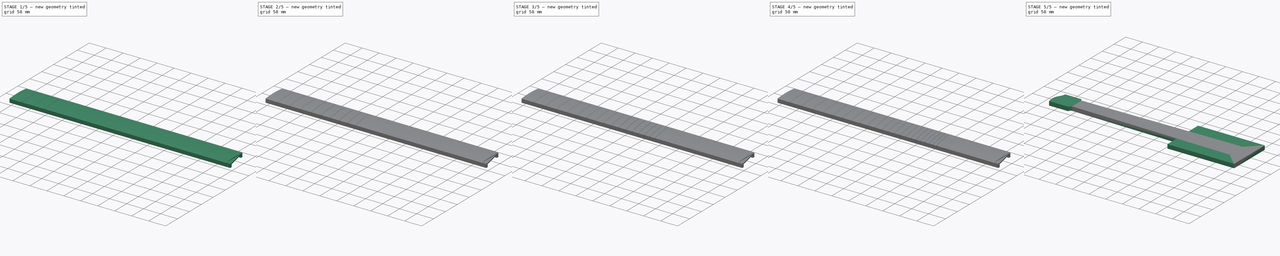
[diagram: build sequence overview — one tinted view per stage of 5, left to right]
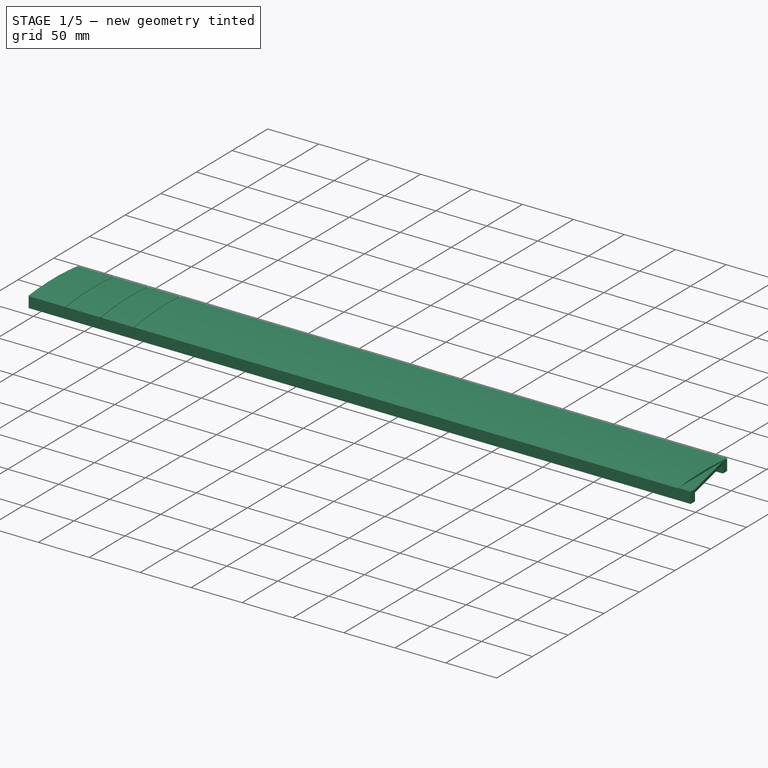
[diagram: stage 1 of 5 — iso view after this stage's code; geometry added in this stage tinted green]
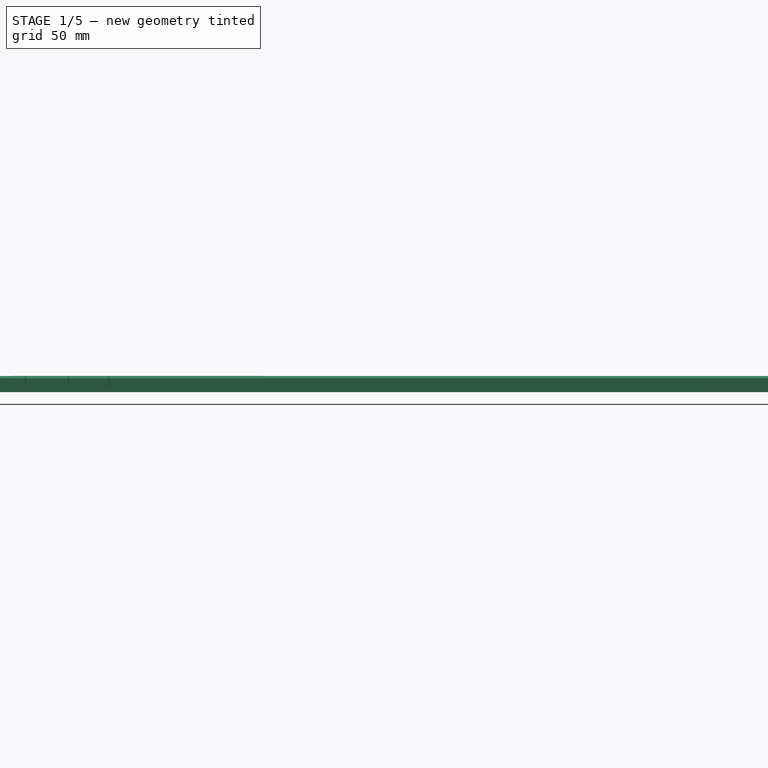
[diagram: stage 1 of 5 — front view after this stage's code; geometry added in this stage tinted green]
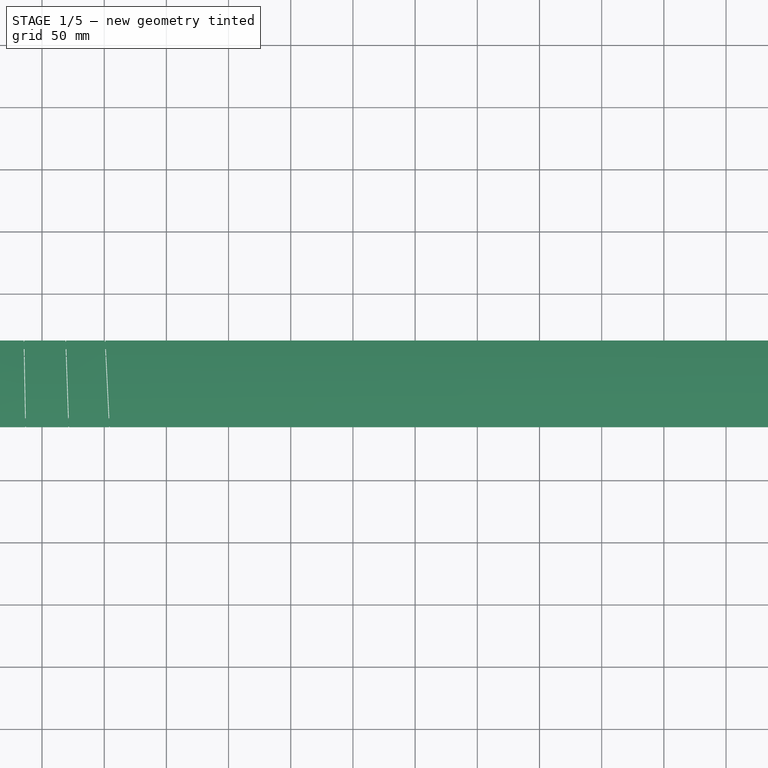
[diagram: stage 1 of 5 — top view after this stage's code; geometry added in this stage tinted green]
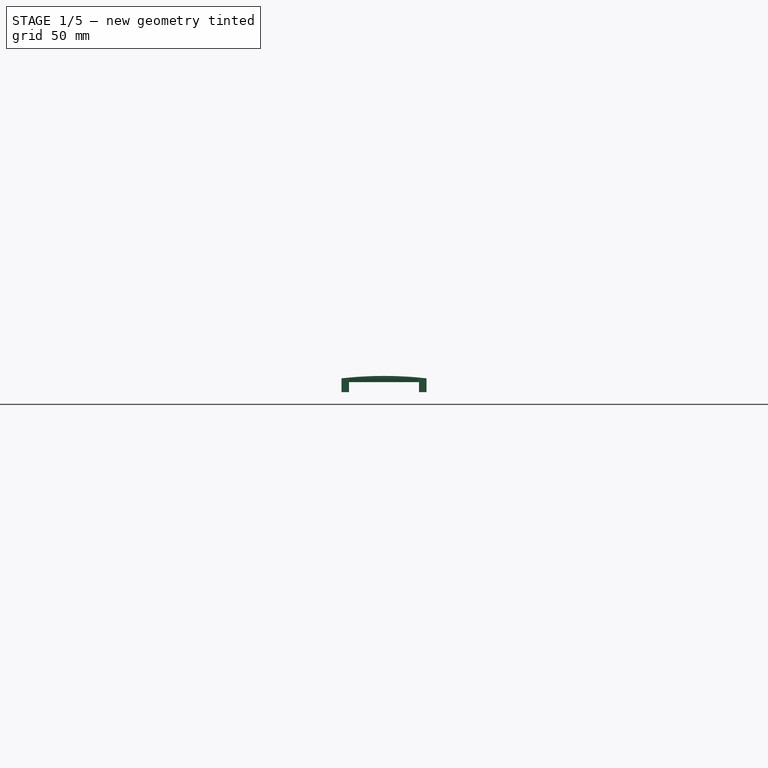
[diagram: stage 1 of 5 — right view after this stage's code; geometry added in this stage tinted green]
FCSTD DOCUMENT  (FreeCAD 1.0R39109 (Git))
Label: fret-slot-guide-jig-
License: All rights reserved
LicenseURL: https://en.wikipedia.org/wiki/All_rights_reserved
objects: Sketcher::SketchObject×29, PartDesign::Pocket×25, PartDesign::Plane×24, PartDesign::Pad×5, PartDesign::Body×4, PartDesign::SubShapeBinder×3, Spreadsheet::Sheet×1, PartDesign::Fillet×1
note: 182 computed .brp shape members not serialized (recipe doc carries the construction recipe); baked Part::Feature solids carry a one-line shape summary decoded from their .brp

FEATURE [Sketcher::SketchObject] Sketch
  ArcFitTolerance = 1e-06
  AttachmentSupport = -> [XY_Plane]
  FullyConstrained = false
  MakeInternals = false
  MapMode = 5
  expr: .Constraints.1-1 = Spreadsheet.string_1_distance_1
  expr: .Constraints.1-10 = Spreadsheet.string_1_distance_10
  expr: .Constraints.1-11 = Spreadsheet.string_1_distance_11
  expr: .Constraints.1-12 = Spreadsheet.string_1_distance_12
  expr: .Constraints.1-13 = Spreadsheet.string_1_distance_13
  expr: .Constraints.1-14 = Spreadsheet.string_1_distance_14
  expr: .Constraints.1-15 = Spreadsheet.string_1_distance_15
  expr: .Constraints.1-16 = Spreadsheet.string_1_distance_16
  expr: .Constraints.1-17 = Spreadsheet.string_1_distance_17
  expr: .Constraints.1-18 = Spreadsheet.string_1_distance_18
  expr: .Constraints.1-19 = Spreadsheet.string_1_distance_19
  expr: .Constraints.1-2 = Spreadsheet.string_1_distance_2
  expr: .Constraints.1-20 = Spreadsheet.string_1_distance_20
  expr: .Constraints.1-21 = Spreadsheet.string_1_distance_21
  expr: .Constraints.1-22 = Spreadsheet.string_1_distance_22
  expr: .Constraints.1-23 = Spreadsheet.string_1_distance_23
  expr: .Constraints.1-24 = Spreadsheet.string_1_distance_24
  expr: .Constraints.1-3 = Spreadsheet.string_1_distance_3
  expr: .Constraints.1-4 = Spreadsheet.string_1_distance_4
  expr: .Constraints.1-5 = Spreadsheet.string_1_distance_5
  expr: .Constraints.1-6 = Spreadsheet.string_1_distance_6
  expr: .Constraints.1-7 = Spreadsheet.string_1_distance_7
  expr: .Constraints.1-8 = Spreadsheet.string_1_distance_8
  expr: .Constraints.1-9 = Spreadsheet.string_1_distance_9
  expr: .Constraints.6-10 = Spreadsheet.string_6_distance_10
  expr: .Constraints.6-11 = Spreadsheet.string_6_distance_11
  expr: .Constraints.6-12 = Spreadsheet.string_6_distance_12
  expr: .Constraints.6-13 = Spreadsheet.string_6_distance_13
  expr: .Constraints.6-14 = Spreadsheet.string_6_distance_14
  expr: .Constraints.6-15 = Spreadsheet.string_6_distance_15
  expr: .Constraints.6-16 = Spreadsheet.string_6_distance_16
  expr: .Constraints.6-17 = Spreadsheet.string_6_distance_17
  expr: .Constraints.6-18 = Spreadsheet.string_6_distance_18
  expr: .Constraints.6-19 = Spreadsheet.string_6_distance_19
  expr: .Constraints.6-2 = Spreadsheet.string_6_distance_2
  expr: .Constraints.6-20 = Spreadsheet.string_6_distance_20
  expr: .Constraints.6-21 = Spreadsheet.string_6_distance_21
  expr: .Constraints.6-22 = Spreadsheet.string_6_distance_22
  expr: .Constraints.6-23 = Spreadsheet.string_6_distance_23
  expr: .Constraints.6-24 = Spreadsheet.string_6_distance_24
  expr: .Constraints.6-3 = Spreadsheet.string_6_distance_3
  expr: .Constraints.6-4 = Spreadsheet.string_6_distance_4
  expr: .Constraints.6-5 = Spreadsheet.string_6_distance_5
  expr: .Constraints.6-6 = Spreadsheet.string_6_distance_6
  expr: .Constraints.6-7 = Spreadsheet.string_6_distance_7
  expr: .Constraints.6-8 = Spreadsheet.string_6_distance_8
  expr: .Constraints.6-9 = Spreadsheet.string_6_distance_9
  expr: .Constraints.6_1 = Spreadsheet.string_6_distance_1
  expr: .Constraints.BridgeWidth = Spreadsheet.bridge_width
  expr: .Constraints.NutWidth = Spreadsheet.nut_width
  expr: .Constraints.StringInset1 = Spreadsheet.string_offset
  expr: .Constraints.StringInset2 = Spreadsheet.string_offset
  expr: .Constraints.StringInset3 = Spreadsheet.string_offset
  expr: .Constraints.StringInset4 = Spreadsheet.string_offset
  expr: .Constraints.scale-1 = Spreadsheet.string_1_length
  expr: .Constraints.scale-6 = Spreadsheet.string_6_length
  sketch-geometry (122):
    g0: LineSegment [constr] StartX=0 StartY=0 StartZ=0 EndX=649.931 EndY=0 EndZ=0
    g1: LineSegment [constr] StartX=637.929 StartY=55 StartZ=0 EndX=0 EndY=55 EndZ=0
    g2: GeomPoint X=-1.3e-15 Y=48.5 Z=0
    g3: GeomPoint X=0 Y=45.5 Z=0
    g4: GeomPoint X=0 Y=9.5 Z=0
    g5: GeomPoint X=4e-16 Y=6.5 Z=0
    g6: LineSegment StartX=0 StartY=55 StartZ=0 EndX=-1.3e-15 EndY=48.5 EndZ=0
    g7: LineSegment StartX=0 StartY=0 StartZ=0 EndX=4e-16 EndY=6.5 EndZ=0
    g8: LineSegment [constr] StartX=0 StartY=9.5 StartZ=0 EndX=649.931 EndY=0 EndZ=0
    g9: LineSegment [constr] StartX=0 StartY=45.5 StartZ=0 EndX=637.929 EndY=55 EndZ=0
    g10: LineSegment StartX=-1.3e-15 StartY=48.5 StartZ=0 EndX=0 EndY=45.5 EndZ=0
    g11: LineSegment StartX=0 StartY=9.5 StartZ=0 EndX=4e-16 EndY=6.5 EndZ=0
    g12: LineSegment StartX=0 StartY=45.5 StartZ=0 EndX=0 EndY=9.5 EndZ=0
    g13: LineSegment StartX=637.929 StartY=55 StartZ=0 EndX=649.931 EndY=0 EndZ=0
    g14: GeomPoint X=36.4778 Y=8.96681 Z=0
    g15: GeomPoint X=70.9086 Y=8.46353 Z=0
    g16: GeomPoint X=305.644 Y=5.03242 Z=0
    g17: GeomPoint X=343.206 Y=4.48338 Z=0
    g18: GeomPoint X=392.007 Y=3.77005 Z=0
    g19: GeomPoint X=433.044 Y=3.17022 Z=0
    g20: GeomPoint X=456.707 Y=2.82434 Z=0
    g21: GeomPoint X=487.45 Y=2.37497 Z=0
    g22: GeomPoint X=35.8042 Y=46.0332 Z=0
    g23: GeomPoint X=69.5989 Y=46.5365 Z=0
    g24: GeomPoint X=101.497 Y=47.0115 Z=0
    g25: GeomPoint X=131.604 Y=47.4598 Z=0
    g26: GeomPoint X=160.022 Y=47.883 Z=0
    g27: GeomPoint X=186.845 Y=48.2825 Z=0
    g28: GeomPoint X=477.788 Y=2.5162 Z=0
    g29: GeomPoint X=467.552 Y=2.66582 Z=0
    g30: GeomPoint X=445.217 Y=2.99228 Z=0
    g31: GeomPoint X=420.147 Y=3.35873 Z=0
    g32: GeomPoint X=376.67 Y=3.99423 Z=0
    g33: GeomPoint X=263.481 Y=5.64871 Z=0
    g34: GeomPoint X=285.171 Y=5.33167 Z=0
    g35: GeomPoint X=324.967 Y=4.74997 Z=0
    g36: GeomPoint X=103.407 Y=7.98851 Z=0
    g37: GeomPoint X=134.081 Y=7.54014 Z=0
    g38: GeomPoint X=163.034 Y=7.11694 Z=0
    g39: GeomPoint X=190.361 Y=6.7175 Z=0
    g40: GeomPoint X=216.155 Y=6.34047 Z=0
    g41: GeomPoint X=240.501 Y=5.9846 Z=0
    g42: GeomPoint X=360.421 Y=4.23174 Z=0
    g43: GeomPoint X=406.484 Y=3.55845 Z=0
    g44: LineSegment StartX=35.8042 StartY=46.0332 StartZ=0 EndX=36.4778 EndY=8.96681 EndZ=0
    g45: LineSegment StartX=69.5989 StartY=46.5365 StartZ=0 EndX=70.9086 EndY=8.46353 EndZ=0
    g46: GeomPoint X=212.163 Y=48.6595 Z=0
    g47: GeomPoint X=236.059 Y=49.0154 Z=0
    g48: GeomPoint X=258.614 Y=49.3513 Z=0
    g49: GeomPoint X=279.904 Y=49.6683 Z=0
    g50: GeomPoint X=299.998 Y=49.9676 Z=0
    g51: GeomPoint X=318.965 Y=50.25 Z=0
    g52: GeomPoint X=336.867 Y=50.5166 Z=0
    g53: GeomPoint X=353.764 Y=50.7682 Z=0
    g54: GeomPoint X=369.713 Y=51.0057 Z=0
    g55: GeomPoint X=384.767 Y=51.2299 Z=0
    g56: GeomPoint X=398.976 Y=51.4415 Z=0
    g57: GeomPoint X=412.387 Y=51.6412 Z=0
    g58: GeomPoint X=425.046 Y=51.8298 Z=0
    g59: GeomPoint X=436.994 Y=52.0077 Z=0
    g60: GeomPoint X=448.272 Y=52.1756 Z=0
    g61: GeomPoint X=458.916 Y=52.3342 Z=0
    g62: GeomPoint X=468.964 Y=52.4838 Z=0
    g63: GeomPoint X=478.447 Y=52.625 Z=0
    g64: LineSegment StartX=101.497 StartY=47.0115 StartZ=0 EndX=103.407 EndY=7.98851 EndZ=0
    g65: LineSegment StartX=131.604 StartY=47.4598 StartZ=0 EndX=134.081 EndY=7.54014 EndZ=0
    g66: LineSegment StartX=160.022 StartY=47.883 StartZ=0 EndX=163.034 EndY=7.11694 EndZ=0
    g67: LineSegment StartX=186.845 StartY=48.2825 StartZ=0 EndX=190.361 EndY=6.7175 EndZ=0
    g68: LineSegment StartX=212.163 StartY=48.6595 StartZ=0 EndX=216.155 EndY=6.34047 EndZ=0
    g69: LineSegment StartX=236.059 StartY=49.0154 StartZ=0 EndX=240.501 EndY=5.9846 EndZ=0
    g70: LineSegment StartX=258.614 StartY=49.3513 StartZ=0 EndX=263.481 EndY=5.64871 EndZ=0
    g71: LineSegment StartX=279.904 StartY=49.6683 StartZ=0 EndX=285.171 EndY=5.33167 EndZ=0
    g72: LineSegment StartX=299.998 StartY=49.9676 StartZ=0 EndX=305.644 EndY=5.03242 EndZ=0
    g73: LineSegment StartX=318.965 StartY=50.25 StartZ=0 EndX=324.967 EndY=4.74997 EndZ=0
    g74: LineSegment StartX=336.867 StartY=50.5166 StartZ=0 EndX=343.206 EndY=4.48338 EndZ=0
    g75: LineSegment StartX=353.764 StartY=50.7682 StartZ=0 EndX=360.421 EndY=4.23174 EndZ=0
    g76: LineSegment StartX=369.713 StartY=51.0057 StartZ=0 EndX=376.67 EndY=3.99423 EndZ=0
    g77: LineSegment StartX=384.767 StartY=51.2299 StartZ=0 EndX=392.007 EndY=3.77005 EndZ=0
    g78: LineSegment StartX=398.976 StartY=51.4415 StartZ=0 EndX=406.484 EndY=3.55845 EndZ=0
    g79: LineSegment StartX=412.387 StartY=51.6412 StartZ=0 EndX=420.147 EndY=3.35873 EndZ=0
    g80: LineSegment StartX=425.046 StartY=51.8298 StartZ=0 EndX=433.044 EndY=3.17022 EndZ=0
    g81: LineSegment StartX=436.994 StartY=52.0077 StartZ=0 EndX=445.217 EndY=2.99228 EndZ=0
    g82: LineSegment StartX=448.272 StartY=52.1756 StartZ=0 EndX=456.707 EndY=2.82434 EndZ=0
    g83: LineSegment StartX=458.916 StartY=52.3342 StartZ=0 EndX=467.552 EndY=2.66582 EndZ=0
    g84: LineSegment StartX=468.964 StartY=52.4838 StartZ=0 EndX=477.788 EndY=2.5162 EndZ=0
    g85: LineSegment StartX=478.447 StartY=52.625 StartZ=0 EndX=487.45 EndY=2.37497 EndZ=0
    g86: LineSegment StartX=478.447 StartY=52.625 StartZ=0 EndX=478.447 EndY=55.625 EndZ=0
    g87: LineSegment StartX=487.45 StartY=2.37497 StartZ=0 EndX=487.45 EndY=-0.625028 EndZ=0
    g88: LineSegment [constr] StartX=478.447 StartY=55.625 StartZ=0 EndX=0 EndY=55.625 EndZ=0
    g89: LineSegment StartX=487.45 StartY=-0.625028 StartZ=0 EndX=0 EndY=-0.625028 EndZ=0
    g90: LineSegment StartX=478.447 StartY=55.625 StartZ=0 EndX=637.929 EndY=55.625 EndZ=0
    g91: LineSegment StartX=487.45 StartY=-0.625028 StartZ=0 EndX=649.931 EndY=-0.625028 EndZ=0
    g92: LineSegment StartX=649.931 StartY=0 StartZ=0 EndX=649.931 EndY=-0.625028 EndZ=0
    g93: LineSegment StartX=637.929 StartY=55 StartZ=0 EndX=637.929 EndY=55.625 EndZ=0
    g94: LineSegment StartX=0 StartY=55.625 StartZ=0 EndX=478.447 EndY=55.625 EndZ=0
    g95: LineSegment StartX=478.447 StartY=55.625 StartZ=0 EndX=478.447 EndY=61.625 EndZ=0
    g96: LineSegment StartX=478.447 StartY=61.625 StartZ=0 EndX=0 EndY=61.625 EndZ=0
    g97: LineSegment StartX=0 StartY=61.625 StartZ=0 EndX=0 EndY=55.625 EndZ=0
    g98: LineSegment StartX=0 StartY=-0.625028 StartZ=0 EndX=0 EndY=-6.62503 EndZ=0
    g99: LineSegment StartX=0 StartY=-6.62503 StartZ=0 EndX=487.45 EndY=-6.62503 EndZ=0
    g100: LineSegment StartX=487.45 StartY=-6.62503 StartZ=0 EndX=487.45 EndY=-0.625028 EndZ=0
    g101: LineSegment StartX=487.45 StartY=-0.625028 StartZ=0 EndX=0 EndY=-0.625028 EndZ=0
    g102: LineSegment StartX=0 StartY=55.625 StartZ=0 EndX=0 EndY=55 EndZ=0
    g103: LineSegment StartX=0 StartY=-0.625028 StartZ=0 EndX=0 EndY=0 EndZ=0
    g104: LineSegment StartX=478.447 StartY=61.625 StartZ=0 EndX=637.929 EndY=61.625 EndZ=0
    g105: LineSegment StartX=487.45 StartY=-6.62503 StartZ=0 EndX=649.931 EndY=-6.62503 EndZ=0
    g106: LineSegment StartX=637.929 StartY=55.625 StartZ=0 EndX=637.929 EndY=61.625 EndZ=0
    g107: LineSegment StartX=649.931 StartY=-0.625028 StartZ=0 EndX=649.931 EndY=-6.62503 EndZ=0
    g108: LineSegment StartX=-1.3e-15 StartY=48.5 StartZ=0 EndX=478.447 EndY=55.625 EndZ=0
    g109: LineSegment StartX=4e-16 StartY=6.5 StartZ=0 EndX=487.45 EndY=-0.625028 EndZ=0
    g110: LineSegment StartX=0 StartY=0 StartZ=0 EndX=-65 EndY=0 EndZ=0
    g111: LineSegment StartX=0 StartY=55 StartZ=0 EndX=-55 EndY=55 EndZ=0
    g112: ArcOfCircle CenterX=0 CenterY=55.625 CenterZ=0 NormalX=0 NormalY=0 NormalZ=1 AngleXU=0 Radius=7.125 StartAngle=3.22942 EndAngle=4.71239
    g113: ArcOfCircle CenterX=0 CenterY=-0.625028 CenterZ=0 NormalX=0 NormalY=0 NormalZ=1 AngleXU=0 Radius=7.12503 StartAngle=1.5708 EndAngle=3.05376
    g114-g117: Circle [constr] x4 (B-spline internal-alignment scaffolding for g118; pole/knot coordinates omitted)
    g118: BSplineCurve PolesCount=4 KnotsCount=2 Degree=3 IsPeriodic=0
    g119: GeomPoint [constr] X=-65 Y=0 Z=0
    g120: GeomPoint [constr] X=-55 Y=55 Z=0
    g121: LineSegment StartX=476.947 StartY=55.6027 StartZ=0 EndX=476.947 EndY=-0.471508 EndZ=0
  constraints (262):
    c: Coincident(g-1,g0)
    c: Horizontal(g0)
    c: PointOnObject(g1,g-2)
    c: PointOnObject(g2,g-2)
    c: PointOnObject(g3,g-2)
    c: PointOnObject(g4,g-2)
    c: PointOnObject(g5,g-2)
    c: DistanceY(g0,g1) = 55  'BridgeWidth'
    c: DistanceY(g5,g2) = 42  'NutWidth'
    c: DistanceY(g3,g2) = 3  'StringInset1'
    c: DistanceY(g5,g4) = 3  'StringInset2'
    c: Coincident(g6,g1)
    c: Coincident(g6,g2)
    c: Coincident(g7,g0)
    c: Coincident(g7,g5)
    c: Equal(g6,g7)
    c: Distance(g8,g8) = 650  'scale-6'
    c: Coincident(g8,g4)
    c: Coincident(g8,g0)
    c: Coincident(g9,g3)
    c: Coincident(g9,g1)
    c: Coincident(g10,g2)
    c: Coincident(g10,g3)
    c: Coincident(g11,g4)
    c: Coincident(g11,g5)
    c: Coincident(g12,g3)
    c: Coincident(g12,g4)
    c: Parallel(g0,g1)
    c: Distance(g9,g9) = 638  'scale-1'
    c: Coincident(g13,g1)
    c: Coincident(g13,g0)
    c: PointOnObject(g14,g8)
    c: PointOnObject(g15,g8)
    c: PointOnObject(g16,g8)
    c: PointOnObject(g17,g8)
    c: PointOnObject(g18,g8)
    c: PointOnObject(g19,g8)
    c: PointOnObject(g20,g8)
    c: PointOnObject(g21,g8)
    c: PointOnObject(g22,g9)
    c: PointOnObject(g23,g9)
    c: PointOnObject(g24,g9)
    c: PointOnObject(g25,g9)
    c: PointOnObject(g26,g9)
    c: PointOnObject(g27,g9)
    c: PointOnObject(g28,g8)
    c: PointOnObject(g29,g8)
    c: PointOnObject(g30,g8)
    c: PointOnObject(g31,g8)
    c: PointOnObject(g32,g8)
    c: PointOnObject(g33,g8)
    c: PointOnObject(g34,g8)
    c: PointOnObject(g35,g8)
    c: Distance(g14,g4) = 36.4817  '6_1'
    c: Distance(g15,g4) = 70.9161  '6-2'
    c: PointOnObject(g36,g8)
    c: Distance(g36,g4) = 103.418  '6-3'
    c: PointOnObject(g37,g8)
    c: Distance(g37,g4) = 134.095  '6-4'
    c: PointOnObject(g38,g8)
    c: Distance(g38,g4) = 163.051  '6-5'
    c: PointOnObject(g39,g8)
    c: Distance(g39,g4) = 190.382  '6-6'
    c: PointOnObject(g40,g8)
    c: Distance(g40,g4) = 216.178  '6-7'
    c: PointOnObject(g41,g8)
    c: Distance(g41,g4) = 240.527  '6-8'
    c: Distance(g33,g4) = 263.509  '6-9'
    c: Distance(g34,g4) = 285.202  '6-10'
    c: Distance(g16,g4) = 305.676  '6-11'
    c: Distance(g35,g4) = 325.002  '6-12'
    c: Distance(g17,g4) = 343.243  '6-13'
    c: PointOnObject(g42,g8)
    c: Distance(g42,g4) = 360.46  '6-14'
    c: Distance(g32,g4) = 376.711  '6-15'
    c: Distance(g18,g4) = 392.049  '6-16'
    c: PointOnObject(g43,g8)
    c: Distance(g43,g4) = 406.527  '6-17'
    c: Distance(g31,g4) = 420.192  '6-18'
    c: Distance(g19,g4) = 433.091  '6-19'
    c: Distance(g30,g4) = 445.265  '6-20'
    c: Distance(g20,g4) = 456.756  '6-21'
    c: Distance(g29,g4) = 467.602  '6-22'
    c: Distance(g28,g4) = 477.839  '6-23'
    c: Distance(g21,g4) = 487.502  '6-24'
    c: Distance(g22,g3) = 35.8082  '1-1'
    c: Distance(g23,g3) = 69.6066  '1-2'
    c: Coincident(g45,g23)
    c: Coincident(g45,g15)
    c: Distance(g24,g3) = 101.508  '1-3'
    c: Distance(g25,g3) = 131.619  '1-4'
    c: Distance(g26,g3) = 160.04  '1-5'
    c: Distance(g27,g3) = 186.866  '1-6'
    c: PointOnObject(g46,g9)
    c: Distance(g46,g3) = 212.186  '1-7'
    c: PointOnObject(g47,g9)
    c: Distance(g47,g3) = 236.085  '1-8'
    c: PointOnObject(g48,g9)
    c: Distance(g48,g3) = 258.643  '1-9'
    c: PointOnObject(g49,g9)
    c: Distance(g49,g3) = 279.935  '1-10'
    c: PointOnObject(g50,g9)
    c: Distance(g50,g3) = 300.031  '1-11'
    c: PointOnObject(g51,g9)
    c: Distance(g51,g3) = 319  '1-12'
    c: PointOnObject(g52,g9)
    c: Distance(g52,g3) = 336.904  '1-13'
    c: PointOnObject(g53,g9)
    c: Distance(g53,g3) = 353.803  '1-14'
    c: PointOnObject(g54,g9)
    c: Distance(g54,g3) = 369.754  '1-15'
    c: PointOnObject(g55,g9)
    c: Distance(g55,g3) = 384.81  '1-16'
    c: PointOnObject(g56,g9)
    c: Distance(g56,g3) = 399.02  '1-17'
    c: PointOnObject(g57,g9)
    c: Distance(g57,g3) = 412.433  '1-18'
    c: PointOnObject(g58,g9)
    c: Distance(g58,g3) = 425.093  '1-19'
    c: PointOnObject(g59,g9)
    c: Distance(g59,g3) = 437.043  '1-20'
    c: PointOnObject(g60,g9)
    c: Distance(g60,g3) = 448.321  '1-21'
    c: PointOnObject(g61,g9)
    c: Distance(g61,g3) = 458.967  '1-22'
    c: PointOnObject(g62,g9)
    c: Distance(g62,g3) = 469.016  '1-23'
    c: PointOnObject(g63,g9)
    c: Distance(g63,g3) = 478.5  '1-24'
    c: Coincident(g64,g24)
    c: Coincident(g64,g36)
    c: Coincident(g65,g25)
    c: Coincident(g65,g37)
    c: Coincident(g66,g26)
    c: Coincident(g66,g38)
    c: Coincident(g67,g27)
    c: Coincident(g67,g39)
    c: Coincident(g68,g46)
    c: Coincident(g68,g40)
    c: Coincident(g69,g47)
    c: Coincident(g69,g41)
    c: Coincident(g70,g48)
    c: Coincident(g70,g33)
    c: Coincident(g71,g49)
    c: Coincident(g71,g34)
    c: Coincident(g72,g50)
    c: Coincident(g72,g16)
    c: Coincident(g73,g51)
    c: Coincident(g73,g35)
    c: Coincident(g74,g52)
    c: Coincident(g74,g17)
    c: Coincident(g75,g53)
    c: Coincident(g75,g42)
    c: Coincident(g76,g54)
    c: Coincident(g76,g32)
    c: Coincident(g77,g55)
    c: Coincident(g77,g18)
    c: Coincident(g78,g56)
    c: Coincident(g78,g43)
    c: Coincident(g79,g57)
    c: Coincident(g79,g31)
    c: Coincident(g80,g58)
    c: Coincident(g80,g19)
    c: Coincident(g81,g59)
    c: Coincident(g81,g30)
    c: Coincident(g82,g60)
    c: Coincident(g82,g20)
    c: Coincident(g83,g61)
    c: Coincident(g83,g29)
    c: Coincident(g84,g62)
    c: Coincident(g84,g28)
    c: Coincident(g85,g63)
    c: Coincident(g85,g21)
    c: Coincident(g86,g63)
    c: Vertical(g86)
    c: DistanceY(g86,g86) = 3  'StringInset3'
    c: Coincident(g87,g21)
    c: Vertical(g87)
    c: DistanceY(g87,g87) = 3  'StringInset4'
    c: Coincident(g88,g86)
    c: PointOnObject(g88,g-2)
    c: Horizontal(g88)
    c: Coincident(g89,g87)
    c: PointOnObject(g89,g-2)
    c: Horizontal(g89)
    c: Coincident(g90,g86)
    c: Horizontal(g90)
    c: Coincident(g91,g87)
    c: Horizontal(g91)
    c: Coincident(g92,g0)
    c: Vertical(g92)
    c: Coincident(g91,g92)
    c: Coincident(g93,g1)
    c: Vertical(g93)
    c: Coincident(g90,g93)
    c: Coincident(g94,g95)
    c: Coincident(g95,g96)
    c: Coincident(g96,g97)
    c: Coincident(g97,g94)
    c: Horizontal(g94)
    c: Horizontal(g96)
    c: Vertical(g95)
    c: Vertical(g97)
    c: Coincident(g94,g88)
    c: Equal(g88,g96)
    c: DistanceY(g97,g97) = 6
    c: Coincident(g98,g99)
    c: Coincident(g99,g100)
    c: Coincident(g100,g101)
    c: Coincident(g101,g98)
    c: Vertical(g98)
    c: Vertical(g100)
    c: Horizontal(g99)
    c: Horizontal(g101)
    c: Coincident(g98,g89)
    c: Equal(g89,g99)
    c: DistanceY(g98,g98) = 6
    c: Coincident(g102,g88)
    c: Coincident(g102,g1)
    c: Coincident(g103,g89)
    c: Coincident(g103,g0)
    c: Coincident(g104,g95)
    c: Horizontal(g104)
    c: Coincident(g105,g99)
    c: Horizontal(g105)
    c: Coincident(g106,g90)
    c: Vertical(g106)
    c: Coincident(g106,g104)
    c: Coincident(g107,g91)
    c: Vertical(g107)
    c: Coincident(g107,g105)
    c: Coincident(g44,g22)
    c: Coincident(g44,g14)
    c: Coincident(g108,g2)
    c: Coincident(g108,g86)
    c: Coincident(g109,g5)
    c: Coincident(g109,g87)
    c: Coincident(g110,g0)
    c: PointOnObject(g110,g-1)
    c: Coincident(g111,g1)
    c: Horizontal(g111)
    c: DistanceX(g110,g110) = 65
    c: DistanceX(g111,g111) = 55
    c: Coincident(g112,g88)
    c: Coincident(g112,g2)
    c: PointOnObject(g112,g111)
    c: Coincident(g113,g89)
    c: Coincident(g113,g5)
    c: PointOnObject(g113,g110)
    c: Weight(g114) = 1
    c: Equal(g114,g115)
    c: Equal(g114,g116)
    c: Equal(g114,g117)
    c: InternalAlignment(g114-g117 -> g118) x4
    c: InternalAlignment(g119,g118)
    c: InternalAlignment(g120,g118)
    c: Coincident(g114,g110)
    c: Coincident(g117,g111)
    c: PointOnObject(g121,g108)
    c: PointOnObject(g121,g109)
    c: Vertical(g121)
    c: DistanceX(g121,g86) = 1.5
FEATURE [PartDesign::Plane] DatumPlane001  label="f-2"
  AttachmentOffset = pos=(0,0,0) rot=(0,1,0;1.5708rad)
  AttachmentSupport = -> [Sketch]
  Length = 81.7898
  MapMode = 7
  Placement = pos=(69.5989,46.5365,0) rot=(-0.590584,0.570618,0.570618;4.20853rad)
  ResizeMode = 0
  Width = 61.8289
FEATURE [PartDesign::Plane] DatumPlane  label="f-1"
  AttachmentOffset = pos=(0,0,0) rot=(0,1,0;1.5708rad)
  AttachmentSupport = -> [Sketch]
  Length = 82.7269
  MapMode = 7
  Placement = pos=(35.8042,46.0332,0) rot=(-0.584344,0.573821,0.573821;4.19925rad)
  ResizeMode = 0
  Width = 61.9017
FEATURE [PartDesign::Plane] DatumPlane002  label="f-3"
  AttachmentOffset = pos=(0,0,0) rot=(0,1,0;1.5708rad)
  AttachmentSupport = -> [Sketch]
  Length = 79.8635
  MapMode = 7
  Placement = pos=(101.497,47.0115,0) rot=(-0.596172,0.567705,0.567705;4.21679rad)
  ResizeMode = 0
  Width = 61.6778
FEATURE [PartDesign::Plane] DatumPlane003  label="f-4"
  AttachmentOffset = pos=(0,0,0) rot=(0,1,0;1.5708rad)
  AttachmentSupport = -> [Sketch]
  Length = 77.1843
  MapMode = 7
  Placement = pos=(131.604,47.4598,0) rot=(-0.601194,0.565051,0.565051;4.22419rad)
  ResizeMode = 0
  Width = 61.4647
FEATURE [PartDesign::Plane] DatumPlane004  label="f-5"
  AttachmentOffset = pos=(0,0,0) rot=(0,1,0;1.5708rad)
  AttachmentSupport = -> [Sketch]
  Length = 73.9393
  MapMode = 7
  Placement = pos=(160.022,47.883,0) rot=(-0.605723,0.562628,0.562628;4.23083rad)
  ResizeMode = 0
  Width = 61.2016
FEATURE [PartDesign::Plane] DatumPlane005  label="f-6"
  AttachmentOffset = pos=(0,0,0) rot=(0,1,0;1.5708rad)
  AttachmentSupport = -> [Sketch]
  Length = 70.2763
  MapMode = 7
  Placement = pos=(186.845,48.2825,0) rot=(-0.609821,0.56041,0.56041;4.23681rad)
  ResizeMode = 0
  Width = 60.8976
FEATURE [Sketcher::SketchObject] Sketch001  label="slot2"
  ArcFitTolerance = 1e-06
  AttachmentSupport = -> [DatumPlane001]
  FullyConstrained = true
  MakeInternals = false
  MapMode = 5
  Placement = pos=(69.5989,46.5365,0) rot=(0.590584,-0.570618,-0.570618;2.07466rad)
  sketch-geometry (4):
    g0: LineSegment StartX=-19.7737 StartY=23 StartZ=0 EndX=-19.7737 EndY=3 EndZ=0
    g1: LineSegment StartX=-19.7737 StartY=3 StartZ=0 EndX=60.2263 EndY=3 EndZ=0
    g2: LineSegment StartX=60.2263 StartY=3 StartZ=0 EndX=60.2263 EndY=23 EndZ=0
    g3: LineSegment StartX=60.2263 StartY=23 StartZ=0 EndX=-19.7737 EndY=23 EndZ=0
  constraints (12):
    c: Coincident(g0,g1)
    c: Coincident(g1,g2)
    c: Coincident(g2,g3)
    c: Coincident(g3,g0)
    c: Vertical(g0)
    c: Vertical(g2)
    c: Horizontal(g1)
    c: Horizontal(g3)
    c: DistanceX(g3,g3) = 80
    c: DistanceY(g0,g0) = 20
    c: Distance(g-1,g1) = 3
    c: Distance(g0,g-1) = 20
FEATURE [Sketcher::SketchObject] Sketch002  label="slot1"
  ArcFitTolerance = 1e-06
  AttachmentSupport = -> [DatumPlane]
  FullyConstrained = true
  MakeInternals = false
  MapMode = 5
  Placement = pos=(35.8042,46.0332,0) rot=(0.584344,-0.573821,-0.573821;2.08394rad)
  sketch-geometry (4):
    g0: LineSegment StartX=-19.7737 StartY=3 StartZ=0 EndX=60.2263 EndY=3 EndZ=0
    g1: LineSegment StartX=60.2263 StartY=3 StartZ=0 EndX=60.2263 EndY=23 EndZ=0
    g2: LineSegment StartX=60.2263 StartY=23 StartZ=0 EndX=-19.7737 EndY=23 EndZ=0
    g3: LineSegment StartX=-19.7737 StartY=23 StartZ=0 EndX=-19.7737 EndY=3 EndZ=0
  constraints (12):
    c: Coincident(g0,g1)
    c: Coincident(g1,g2)
    c: Coincident(g2,g3)
    c: Coincident(g3,g0)
    c: Horizontal(g0)
    c: Horizontal(g2)
    c: Vertical(g1)
    c: Vertical(g3)
    c: DistanceX(g2,g2) = 80
    c: DistanceY(g3,g3) = 20
    c: Distance(g-1,g0) = 3
    c: Distance(g-1,g0) = 20
FEATURE [PartDesign::Plane] DatumPlane006  label="f-7"
  AttachmentOffset = pos=(0,0,0) rot=(0,1,0;1.5708rad)
  AttachmentSupport = -> [Sketch]
  Length = 66.3131
  MapMode = 7
  Placement = pos=(212.163,48.6595,0) rot=(-0.613539,0.558377,0.558377;4.24222rad)
  ResizeMode = 0
  Width = 60.5597
FEATURE [PartDesign::Plane] DatumPlane007  label="f-8"
  AttachmentOffset = pos=(0,0,0) rot=(0,1,0;1.5708rad)
  AttachmentSupport = -> [Sketch]
  Length = 65.346
  MapMode = 7
  Placement = pos=(236.059,49.0154,0) rot=(-0.616922,0.55651,0.55651;4.24713rad)
  ResizeMode = 0
  Width = 60.4757
FEATURE [PartDesign::Plane] DatumPlane008  label="f-9"
  AttachmentOffset = pos=(0,0,0) rot=(0,1,0;1.5708rad)
  AttachmentSupport = -> [Sketch]
  Length = 65.7365
  MapMode = 7
  Placement = pos=(258.614,49.3513,0) rot=(-0.620007,0.554793,0.554793;4.25159rad)
  ResizeMode = 0
  Width = 60.5097
FEATURE [PartDesign::Plane] DatumPlane009  label="f-10"
  AttachmentOffset = pos=(0,0,0) rot=(0,1,0;1.5708rad)
  AttachmentSupport = -> [Sketch]
  Length = 66.09
  MapMode = 7
  Placement = pos=(279.904,49.6683,0) rot=(-0.622827,0.553212,0.553212;4.25566rad)
  ResizeMode = 0
  Width = 60.5404
FEATURE [PartDesign::Plane] DatumPlane010  label="f-11"
  AttachmentOffset = pos=(0,0,0) rot=(0,1,0;1.5708rad)
  AttachmentSupport = -> [Sketch]
  Length = 66.4111
  MapMode = 7
  Placement = pos=(299.998,49.9676,0) rot=(-0.625411,0.551752,0.551752;4.25938rad)
  ResizeMode = 0
  Width = 60.5682
FEATURE [PartDesign::Plane] DatumPlane011  label="f-12"
  AttachmentOffset = pos=(0,0,0) rot=(0,1,0;1.5708rad)
  AttachmentSupport = -> [Sketch]
  Length = 66.7034
  MapMode = 7
  Placement = pos=(318.965,50.25,0) rot=(-0.627783,0.550404,0.550404;4.26279rad)
  ResizeMode = 0
  Width = 60.5934
FEATURE [PartDesign::Plane] DatumPlane012  label="f-13"
  AttachmentOffset = pos=(0,0,0) rot=(0,1,0;1.5708rad)
  AttachmentSupport = -> [Sketch]
  Length = 66.9701
  MapMode = 7
  Placement = pos=(336.867,50.5166,0) rot=(-0.629964,0.549156,0.549156;4.26591rad)
  ResizeMode = 0
  Width = 60.6164
FEATURE [PartDesign::Plane] DatumPlane013  label="f-14"
  AttachmentOffset = pos=(0,0,0) rot=(0,1,0;1.5708rad)
  AttachmentSupport = -> [Sketch]
  Length = 67.2141
  MapMode = 7
  Placement = pos=(353.764,50.7682,0) rot=(-0.631974,0.548001,0.548001;4.26879rad)
  ResizeMode = 0
  Width = 60.6374
FEATURE [PartDesign::Plane] DatumPlane014  label="f-15"
  AttachmentOffset = pos=(0,0,0) rot=(0,1,0;1.5708rad)
  AttachmentSupport = -> [Sketch]
  Length = 67.4377
  MapMode = 7
  Placement = pos=(369.713,51.0057,0) rot=(-0.633827,0.546929,0.546929;4.27144rad)
  ResizeMode = 0
  Width = 60.6566
FEATURE [PartDesign::Plane] DatumPlane015  label="f-16"
  AttachmentOffset = pos=(0,0,0) rot=(0,1,0;1.5708rad)
  AttachmentSupport = -> [Sketch]
  Length = 67.6431
  MapMode = 7
  Placement = pos=(384.767,51.2299,0) rot=(-0.63554,0.545934,0.545934;4.27388rad)
  ResizeMode = 0
  Width = 60.6742
FEATURE [PartDesign::Plane] DatumPlane016  label="f-17"
  AttachmentOffset = pos=(0,0,0) rot=(0,1,0;1.5708rad)
  AttachmentSupport = -> [Sketch]
  Length = 67.832
  MapMode = 7
  Placement = pos=(398.976,51.4415,0) rot=(-0.637125,0.54501,0.54501;4.27613rad)
  ResizeMode = 0
  Width = 60.6903
FEATURE [PartDesign::Plane] DatumPlane017  label="f-18"
  AttachmentOffset = pos=(0,0,0) rot=(0,1,0;1.5708rad)
  AttachmentSupport = -> [Sketch]
  Length = 68.0061
  MapMode = 7
  Placement = pos=(412.387,51.6412,0) rot=(-0.638593,0.54415,0.54415;4.27822rad)
  ResizeMode = 0
  Width = 60.7052
FEATURE [PartDesign::Plane] DatumPlane018  label="f-19"
  AttachmentOffset = pos=(0,0,0) rot=(0,1,0;1.5708rad)
  AttachmentSupport = -> [Sketch]
  Length = 68.1667
  MapMode = 7
  Placement = pos=(425.046,51.8298,0) rot=(-0.639954,0.54335,0.54335;4.28015rad)
  ResizeMode = 0
  Width = 60.7189
FEATURE [PartDesign::Plane] DatumPlane019  label="f-20"
  AttachmentOffset = pos=(0,0,0) rot=(0,1,0;1.5708rad)
  AttachmentSupport = -> [Sketch]
  Length = 68.3152
  MapMode = 7
  Placement = pos=(436.994,52.0077,0) rot=(-0.641218,0.542604,0.542604;4.28195rad)
  ResizeMode = 0
  Width = 60.7316
FEATURE [PartDesign::Plane] DatumPlane020  label="f-21"
  AttachmentOffset = pos=(0,0,0) rot=(0,1,0;1.5708rad)
  AttachmentSupport = -> [Sketch]
  Length = 68.4525
  MapMode = 7
  Placement = pos=(448.272,52.1756,0) rot=(-0.642393,0.541909,0.541909;4.28361rad)
  ResizeMode = 0
  Width = 60.7433
FEATURE [PartDesign::Plane] DatumPlane021  label="f-22"
  AttachmentOffset = pos=(0,0,0) rot=(0,1,0;1.5708rad)
  AttachmentSupport = -> [Sketch]
  Length = 68.5798
  MapMode = 7
  Placement = pos=(458.916,52.3342,0) rot=(-0.643486,0.54126,0.54126;4.28516rad)
  ResizeMode = 0
  Width = 60.7541
FEATURE [PartDesign::Plane] DatumPlane022  label="f-23"
  AttachmentOffset = pos=(0,0,0) rot=(0,1,0;1.5708rad)
  AttachmentSupport = -> [Sketch]
  Length = 69.6903
  MapMode = 7
  Placement = pos=(468.964,52.4838,0) rot=(-0.644504,0.540655,0.540655;4.2866rad)
  ResizeMode = 0
  Width = 60.8482
FEATURE [Sketcher::SketchObject] Sketch003  label="slot3"
  ArcFitTolerance = 1e-06
  AttachmentSupport = -> [DatumPlane002]
  FullyConstrained = true
  MakeInternals = false
  MapMode = 5
  Placement = pos=(101.497,47.0115,0) rot=(0.596172,-0.567705,-0.567705;2.06639rad)
  sketch-geometry (4):
    g0: LineSegment StartX=-19.7737 StartY=23 StartZ=0 EndX=-19.7737 EndY=3 EndZ=0
    g1: LineSegment StartX=60.2263 StartY=3 StartZ=0 EndX=60.2263 EndY=23 EndZ=0
    g2: LineSegment StartX=60.2263 StartY=23 StartZ=0 EndX=-19.7737 EndY=23 EndZ=0
    g3: LineSegment StartX=-19.7737 StartY=3 StartZ=0 EndX=60.2263 EndY=3 EndZ=0
  constraints (12):
    c: Coincident(g1,g2)
    c: Coincident(g2,g0)
    c: Vertical(g0)
    c: Vertical(g1)
    c: Horizontal(g2)
    c: DistanceY(g0,g0) = 20
    c: DistanceX(g2,g2) = 80
    c: Distance(g0,g-1) = 20
    c: Coincident(g3,g0)
    c: Coincident(g3,g1)
    c: Horizontal(g3)
    c: Distance(g3,g-1) = 3
FEATURE [Sketcher::SketchObject] Sketch005  label="slot5"
  ArcFitTolerance = 1e-06
  AttachmentSupport = -> [DatumPlane004]
  FullyConstrained = true
  MakeInternals = false
  MapMode = 5
  Placement = pos=(160.022,47.883,0) rot=(0.605723,-0.562628,-0.562628;2.05236rad)
  sketch-geometry (4):
    g0: LineSegment StartX=-19.7737 StartY=23 StartZ=0 EndX=-19.7737 EndY=3 EndZ=0
    g1: LineSegment StartX=-19.7737 StartY=3 StartZ=0 EndX=60.2263 EndY=3 EndZ=0
    g2: LineSegment StartX=60.2263 StartY=3 StartZ=0 EndX=60.2263 EndY=23 EndZ=0
    g3: LineSegment StartX=60.2263 StartY=23 StartZ=0 EndX=-19.7737 EndY=23 EndZ=0
  constraints (12):
    c: Coincident(g0,g1)
    c: Coincident(g1,g2)
    c: Coincident(g2,g3)
    c: Coincident(g3,g0)
    c: Vertical(g0)
    c: Vertical(g2)
    c: Horizontal(g1)
    c: Horizontal(g3)
    c: Distance(g-1,g0) = 20
    c: DistanceY(g0,g0) = 20
    c: DistanceX(g3,g3) = 80
    c: Distance(g-1,g1) = 3
FEATURE [Sketcher::SketchObject] Sketch006  label="slot6"
  ArcFitTolerance = 1e-06
  AttachmentSupport = -> [DatumPlane005]
  FullyConstrained = true
  MakeInternals = false
  MapMode = 5
  Placement = pos=(186.845,48.2825,0) rot=(0.609821,-0.56041,-0.56041;2.04637rad)
  sketch-geometry (4):
    g0: LineSegment StartX=-19.7737 StartY=23 StartZ=0 EndX=-19.7737 EndY=3 EndZ=0
    g1: LineSegment StartX=-19.7737 StartY=3 StartZ=0 EndX=60.2263 EndY=3 EndZ=0
    g2: LineSegment StartX=60.2263 StartY=3 StartZ=0 EndX=60.2263 EndY=23 EndZ=0
    g3: LineSegment StartX=60.2263 StartY=23 StartZ=0 EndX=-19.7737 EndY=23 EndZ=0
  constraints (12):
    c: Coincident(g0,g1)
    c: Coincident(g1,g2)
    c: Coincident(g2,g3)
    c: Coincident(g3,g0)
    c: Vertical(g0)
    c: Vertical(g2)
    c: Horizontal(g1)
    c: Horizontal(g3)
    c: Distance(g-1,g0) = 20
    c: DistanceY(g0,g0) = 20
    c: DistanceX(g3,g3) = 80
    c: Distance(g-1,g1) = 3
FEATURE [Sketcher::SketchObject] Sketch007  label="slot7"
  ArcFitTolerance = 1e-06
  AttachmentSupport = -> [DatumPlane006]
  FullyConstrained = true
  MakeInternals = false
  MapMode = 5
  Placement = pos=(212.163,48.6595,0) rot=(0.613539,-0.558377,-0.558377;2.04096rad)
  sketch-geometry (4):
    g0: LineSegment StartX=-19.7737 StartY=23 StartZ=0 EndX=-19.7737 EndY=3 EndZ=0
    g1: LineSegment StartX=60.2263 StartY=3 StartZ=0 EndX=60.2263 EndY=23 EndZ=0
    g2: LineSegment StartX=60.2263 StartY=23 StartZ=0 EndX=-19.7737 EndY=23 EndZ=0
    g3: LineSegment StartX=-19.7737 StartY=3 StartZ=0 EndX=60.2263 EndY=3 EndZ=0
  constraints (12):
    c: Coincident(g1,g2)
    c: Coincident(g2,g0)
    c: Vertical(g0)
    c: Vertical(g1)
    c: Horizontal(g2)
    c: DistanceY(g0,g0) = 20
    c: DistanceX(g2,g2) = 80
    c: Coincident(g3,g0)
    c: Coincident(g3,g1)
    c: Horizontal(g3)
    c: Distance(g-1,g3) = 3
    c: Distance(g-1,g0) = 20
FEATURE [Sketcher::SketchObject] Sketch008  label="slot8"
  ArcFitTolerance = 1e-06
  AttachmentSupport = -> [DatumPlane007]
  FullyConstrained = true
  MakeInternals = false
  MapMode = 5
  Placement = pos=(236.059,49.0154,0) rot=(0.616922,-0.55651,-0.55651;2.03606rad)
  sketch-geometry (4):
    g0: LineSegment StartX=-19.7737 StartY=23 StartZ=0 EndX=-19.7737 EndY=3 EndZ=0
    g1: LineSegment StartX=-19.7737 StartY=3 StartZ=0 EndX=60.2263 EndY=3 EndZ=0
    g2: LineSegment StartX=60.2263 StartY=3 StartZ=0 EndX=60.2263 EndY=23 EndZ=0
    g3: LineSegment StartX=60.2263 StartY=23 StartZ=0 EndX=-19.7737 EndY=23 EndZ=0
  constraints (12):
    c: Coincident(g0,g1)
    c: Coincident(g1,g2)
    c: Coincident(g2,g3)
    c: Coincident(g3,g0)
    c: Vertical(g0)
    c: Vertical(g2)
    c: Horizontal(g1)
    c: Horizontal(g3)
    c: Distance(g-1,g1) = 3
    c: Distance(g-1,g0) = 20
    c: DistanceY(g0,g0) = 20
    c: DistanceX(g3,g3) = 80
FEATURE [Sketcher::SketchObject] Sketch009  label="slot9"
  ArcFitTolerance = 1e-06
  AttachmentSupport = -> [DatumPlane008]
  FullyConstrained = true
  MakeInternals = false
  MapMode = 5
  Placement = pos=(258.614,49.3513,0) rot=(0.620007,-0.554793,-0.554793;2.03159rad)
  sketch-geometry (4):
    g0: LineSegment StartX=-19.7737 StartY=23 StartZ=0 EndX=-19.7737 EndY=3 EndZ=0
    g1: LineSegment StartX=-19.7737 StartY=3 StartZ=0 EndX=60.2263 EndY=3 EndZ=0
    g2: LineSegment StartX=60.2263 StartY=3 StartZ=0 EndX=60.2263 EndY=23 EndZ=0
    g3: LineSegment StartX=60.2263 StartY=23 StartZ=0 EndX=-19.7737 EndY=23 EndZ=0
  constraints (12):
    c: Coincident(g0,g1)
    c: Coincident(g1,g2)
    c: Coincident(g2,g3)
    c: Coincident(g3,g0)
    c: Vertical(g0)
    c: Vertical(g2)
    c: Horizontal(g1)
    c: Horizontal(g3)
    c: Distance(g-1,g1) = 3
    c: DistanceY(g0,g0) = 20
    c: DistanceX(g3,g3) = 80
    c: Distance(g-1,g0) = 20
FEATURE [Sketcher::SketchObject] Sketch010  label="slot10"
  ArcFitTolerance = 1e-06
  AttachmentSupport = -> [DatumPlane009]
  FullyConstrained = true
  MakeInternals = false
  MapMode = 5
  Placement = pos=(279.904,49.6683,0) rot=(0.622827,-0.553212,-0.553212;2.02752rad)
  sketch-geometry (4):
    g0: LineSegment StartX=-19.7737 StartY=23 StartZ=0 EndX=-19.7737 EndY=3 EndZ=0
    g1: LineSegment StartX=-19.7737 StartY=3 StartZ=0 EndX=60.2263 EndY=3 EndZ=0
    g2: LineSegment StartX=60.2263 StartY=3 StartZ=0 EndX=60.2263 EndY=23 EndZ=0
    g3: LineSegment StartX=60.2263 StartY=23 StartZ=0 EndX=-19.7737 EndY=23 EndZ=0
  constraints (12):
    c: Coincident(g0,g1)
    c: Coincident(g1,g2)
    c: Coincident(g2,g3)
    c: Coincident(g3,g0)
    c: Vertical(g0)
    c: Vertical(g2)
    c: Horizontal(g1)
    c: Horizontal(g3)
    c: Distance(g-1,g1) = 3
    c: DistanceY(g0,g0) = 20
    c: DistanceX(g3,g3) = 80
    c: Distance(g-1,g0) = 20
FEATURE [Sketcher::SketchObject] Sketch011  label="slot11"
  ArcFitTolerance = 1e-06
  AttachmentSupport = -> [DatumPlane010]
  FullyConstrained = true
  MakeInternals = false
  MapMode = 5
  Placement = pos=(299.998,49.9676,0) rot=(0.625411,-0.551752,-0.551752;2.0238rad)
  sketch-geometry (4):
    g0: LineSegment StartX=-19.7737 StartY=23 StartZ=0 EndX=-19.7737 EndY=3 EndZ=0
    g1: LineSegment StartX=-19.7737 StartY=3 StartZ=0 EndX=60.2263 EndY=3 EndZ=0
    g2: LineSegment StartX=60.2263 StartY=3 StartZ=0 EndX=60.2263 EndY=23 EndZ=0
    g3: LineSegment StartX=60.2263 StartY=23 StartZ=0 EndX=-19.7737 EndY=23 EndZ=0
  constraints (12):
    c: Coincident(g0,g1)
    c: Coincident(g1,g2)
    c: Coincident(g2,g3)
    c: Coincident(g3,g0)
    c: Vertical(g0)
    c: Vertical(g2)
    c: Horizontal(g1)
    c: Horizontal(g3)
    c: Distance(g-1,g1) = 3
    c: DistanceY(g0,g0) = 20
    c: DistanceX(g3,g3) = 80
    c: Distance(g-1,g0) = 20
FEATURE [Sketcher::SketchObject] Sketch012  label="slot12"
  ArcFitTolerance = 1e-06
  AttachmentSupport = -> [DatumPlane011]
  FullyConstrained = true
  MakeInternals = false
  MapMode = 5
  Placement = pos=(318.965,50.25,0) rot=(0.627783,-0.550404,-0.550404;2.0204rad)
  sketch-geometry (4):
    g0: LineSegment StartX=-19.7737 StartY=23 StartZ=0 EndX=-19.7737 EndY=3 EndZ=0
    g1: LineSegment StartX=-19.7737 StartY=3 StartZ=0 EndX=60.2263 EndY=3 EndZ=0
    g2: LineSegment StartX=60.2263 StartY=3 StartZ=0 EndX=60.2263 EndY=23 EndZ=0
    g3: LineSegment StartX=60.2263 StartY=23 StartZ=0 EndX=-19.7737 EndY=23 EndZ=0
  constraints (12):
    c: Coincident(g0,g1)
    c: Coincident(g1,g2)
    c: Coincident(g2,g3)
    c: Coincident(g3,g0)
    c: Vertical(g0)
    c: Vertical(g2)
    c: Horizontal(g1)
    c: Horizontal(g3)
    c: Distance(g-1,g1) = 3
    c: Distance(g-1,g0) = 20
    c: DistanceY(g0,g0) = 20
    c: DistanceX(g3,g3) = 80
FEATURE [Sketcher::SketchObject] Sketch013  label="slot13"
  ArcFitTolerance = 1e-06
  AttachmentSupport = -> [DatumPlane012]
  FullyConstrained = true
  MakeInternals = false
  MapMode = 5
  Placement = pos=(336.867,50.5166,0) rot=(0.629964,-0.549156,-0.549156;2.01727rad)
  sketch-geometry (4):
    g0: LineSegment StartX=-19.7737 StartY=23 StartZ=0 EndX=-19.7737 EndY=3 EndZ=0
    g1: LineSegment StartX=-19.7737 StartY=3 StartZ=0 EndX=60.2263 EndY=3 EndZ=0
    g2: LineSegment StartX=60.2263 StartY=3 StartZ=0 EndX=60.2263 EndY=23 EndZ=0
    g3: LineSegment StartX=60.2263 StartY=23 StartZ=0 EndX=-19.7737 EndY=23 EndZ=0
  constraints (12):
    c: Coincident(g0,g1)
    c: Coincident(g1,g2)
    c: Coincident(g2,g3)
    c: Coincident(g3,g0)
    c: Vertical(g0)
    c: Vertical(g2)
    c: Horizontal(g1)
    c: Horizontal(g3)
    c: Distance(g-1,g1) = 3
    c: Distance(g-1,g0) = 20
    c: DistanceY(g0,g0) = 20
    c: DistanceX(g3,g3) = 80
FEATURE [Sketcher::SketchObject] Sketch014  label="slot14"
  ArcFitTolerance = 1e-06
  AttachmentSupport = -> [DatumPlane013]
  FullyConstrained = true
  MakeInternals = false
  MapMode = 5
  Placement = pos=(353.764,50.7682,0) rot=(0.631974,-0.548001,-0.548001;2.0144rad)
  sketch-geometry (4):
    g0: LineSegment StartX=-19.7737 StartY=23 StartZ=0 EndX=-19.7737 EndY=3 EndZ=0
    g1: LineSegment StartX=-19.7737 StartY=3 StartZ=0 EndX=80.2263 EndY=3 EndZ=0
    g2: LineSegment StartX=80.2263 StartY=3 StartZ=0 EndX=80.2263 EndY=23 EndZ=0
    g3: LineSegment StartX=80.2263 StartY=23 StartZ=0 EndX=-19.7737 EndY=23 EndZ=0
  constraints (12):
    c: Coincident(g0,g1)
    c: Coincident(g1,g2)
    c: Coincident(g2,g3)
    c: Coincident(g3,g0)
    c: Vertical(g0)
    c: Vertical(g2)
    c: Horizontal(g1)
    c: Horizontal(g3)
    c: Distance(g-1,g1) = 3
    c: Distance(g-1,g0) = 20
    c: DistanceY(g0,g0) = 20
    c: DistanceX(g3,g3) = 100
FEATURE [Sketcher::SketchObject] Sketch015  label="slot15"
  ArcFitTolerance = 1e-06
  AttachmentSupport = -> [DatumPlane014]
  FullyConstrained = true
  MakeInternals = false
  MapMode = 5
  Placement = pos=(369.713,51.0057,0) rot=(0.633827,-0.546929,-0.546929;2.01175rad)
  sketch-geometry (4):
    g0: LineSegment StartX=-19.7737 StartY=23 StartZ=0 EndX=-19.7737 EndY=3 EndZ=0
    g1: LineSegment StartX=-19.7737 StartY=3 StartZ=0 EndX=80.2263 EndY=3 EndZ=0
    g2: LineSegment StartX=80.2263 StartY=3 StartZ=0 EndX=80.2263 EndY=23 EndZ=0
    g3: LineSegment StartX=80.2263 StartY=23 StartZ=0 EndX=-19.7737 EndY=23 EndZ=0
  constraints (12):
    c: Coincident(g0,g1)
    c: Coincident(g1,g2)
    c: Coincident(g2,g3)
    c: Coincident(g3,g0)
    c: Vertical(g0)
    c: Vertical(g2)
    c: Horizontal(g1)
    c: Horizontal(g3)
    c: Distance(g-1,g1) = 3
    c: Distance(g-1,g0) = 20
    c: DistanceY(g0,g0) = 20
    c: DistanceX(g3,g3) = 100
FEATURE [Sketcher::SketchObject] Sketch016  label="slot16"
  ArcFitTolerance = 1e-06
  AttachmentSupport = -> [DatumPlane015]
  FullyConstrained = true
  MakeInternals = false
  MapMode = 5
  Placement = pos=(384.767,51.2299,0) rot=(0.63554,-0.545934,-0.545934;2.00931rad)
  sketch-geometry (4):
    g0: LineSegment StartX=-20 StartY=23 StartZ=0 EndX=-20 EndY=3 EndZ=0
    g1: LineSegment StartX=-20 StartY=3 StartZ=0 EndX=80 EndY=3 EndZ=0
    g2: LineSegment StartX=80 StartY=3 StartZ=0 EndX=80 EndY=23 EndZ=0
    g3: LineSegment StartX=80 StartY=23 StartZ=0 EndX=-20 EndY=23 EndZ=0
  constraints (12):
    c: Coincident(g0,g1)
    c: Coincident(g1,g2)
    c: Coincident(g2,g3)
    c: Coincident(g3,g0)
    c: Vertical(g0)
    c: Vertical(g2)
    c: Horizontal(g1)
    c: Horizontal(g3)
    c: Distance(g-1,g1) = 3
    c: Distance(g0,g-2) = 20
    c: DistanceY(g0,g0) = 20
    c: DistanceX(g3,g3) = 100
FEATURE [Sketcher::SketchObject] Sketch017  label="slot17"
  ArcFitTolerance = 1e-06
  AttachmentSupport = -> [DatumPlane016]
  FullyConstrained = true
  MakeInternals = false
  MapMode = 5
  Placement = pos=(398.976,51.4415,0) rot=(0.637125,-0.54501,-0.54501;2.00705rad)
  sketch-geometry (4):
    g0: LineSegment StartX=-19.7737 StartY=23 StartZ=0 EndX=-19.7737 EndY=3 EndZ=0
    g1: LineSegment StartX=-19.7737 StartY=3 StartZ=0 EndX=80.2263 EndY=3 EndZ=0
    g2: LineSegment StartX=80.2263 StartY=3 StartZ=0 EndX=80.2263 EndY=23 EndZ=0
    g3: LineSegment StartX=80.2263 StartY=23 StartZ=0 EndX=-19.7737 EndY=23 EndZ=0
  constraints (12):
    c: Coincident(g0,g1)
    c: Coincident(g1,g2)
    c: Coincident(g2,g3)
    c: Coincident(g3,g0)
    c: Vertical(g0)
    c: Vertical(g2)
    c: Horizontal(g1)
    c: Horizontal(g3)
    c: Distance(g-1,g1) = 3
    c: Distance(g-1,g0) = 20
    c: DistanceY(g0,g0) = 20
    c: DistanceX(g3,g3) = 100
FEATURE [Sketcher::SketchObject] Sketch018  label="slot18"
  ArcFitTolerance = 1e-06
  AttachmentSupport = -> [DatumPlane017]
  FullyConstrained = true
  MakeInternals = false
  MapMode = 5
  Placement = pos=(412.387,51.6412,0) rot=(0.638593,-0.54415,-0.54415;2.00496rad)
  sketch-geometry (4):
    g0: LineSegment StartX=-19.7737 StartY=23 StartZ=0 EndX=-19.7737 EndY=3 EndZ=0
    g1: LineSegment StartX=-19.7737 StartY=3 StartZ=0 EndX=80.2263 EndY=3 EndZ=0
    g2: LineSegment StartX=80.2263 StartY=3 StartZ=0 EndX=80.2263 EndY=23 EndZ=0
    g3: LineSegment StartX=80.2263 StartY=23 StartZ=0 EndX=-19.7737 EndY=23 EndZ=0
  constraints (12):
    c: Coincident(g0,g1)
    c: Coincident(g1,g2)
    c: Coincident(g2,g3)
    c: Coincident(g3,g0)
    c: Vertical(g0)
    c: Vertical(g2)
    c: Horizontal(g1)
    c: Horizontal(g3)
    c: Distance(g-1,g1) = 3
    c: Distance(g-1,g0) = 20
    c: DistanceY(g0,g0) = 20
    c: DistanceX(g3,g3) = 100
FEATURE [Sketcher::SketchObject] Sketch019  label="slot19"
  ArcFitTolerance = 1e-06
  AttachmentSupport = -> [DatumPlane018]
  FullyConstrained = true
  MakeInternals = false
  MapMode = 5
  Placement = pos=(425.046,51.8298,0) rot=(0.639954,-0.54335,-0.54335;2.00303rad)
  sketch-geometry (4):
    g0: LineSegment StartX=-19.7737 StartY=23 StartZ=0 EndX=-19.7737 EndY=3 EndZ=0
    g1: LineSegment StartX=-19.7737 StartY=3 StartZ=0 EndX=80.2263 EndY=3 EndZ=0
    g2: LineSegment StartX=80.2263 StartY=3 StartZ=0 EndX=80.2263 EndY=23 EndZ=0
    g3: LineSegment StartX=80.2263 StartY=23 StartZ=0 EndX=-19.7737 EndY=23 EndZ=0
  constraints (12):
    c: Coincident(g0,g1)
    c: Coincident(g1,g2)
    c: Coincident(g2,g3)
    c: Coincident(g3,g0)
    c: Vertical(g0)
    c: Vertical(g2)
    c: Horizontal(g1)
    c: Horizontal(g3)
    c: Distance(g-1,g1) = 3
    c: Distance(g-1,g0) = 20
    c: DistanceY(g0,g0) = 20
    c: DistanceX(g3,g3) = 100
FEATURE [Sketcher::SketchObject] Sketch020  label="slot20"
  ArcFitTolerance = 1e-06
  AttachmentSupport = -> [DatumPlane019]
  FullyConstrained = true
  MakeInternals = false
  MapMode = 5
  Placement = pos=(436.994,52.0077,0) rot=(0.641218,-0.542604,-0.542604;2.00124rad)
  sketch-geometry (4):
    g0: LineSegment StartX=-19.7737 StartY=23 StartZ=0 EndX=-19.7737 EndY=3 EndZ=0
    g1: LineSegment StartX=-19.7737 StartY=3 StartZ=0 EndX=80.2263 EndY=3 EndZ=0
    g2: LineSegment StartX=80.2263 StartY=3 StartZ=0 EndX=80.2263 EndY=23 EndZ=0
    g3: LineSegment StartX=80.2263 StartY=23 StartZ=0 EndX=-19.7737 EndY=23 EndZ=0
  constraints (12):
    c: Coincident(g0,g1)
    c: Coincident(g1,g2)
    c: Coincident(g2,g3)
    c: Coincident(g3,g0)
    c: Vertical(g0)
    c: Vertical(g2)
    c: Horizontal(g1)
    c: Horizontal(g3)
    c: Distance(g-1,g1) = 3
    c: DistanceY(g0,g0) = 20
    c: DistanceX(g3,g3) = 100
    c: Distance(g-1,g0) = 20
FEATURE [Sketcher::SketchObject] Sketch021  label="slot21"
  ArcFitTolerance = 1e-06
  AttachmentSupport = -> [DatumPlane020]
  FullyConstrained = true
  MakeInternals = false
  MapMode = 5
  Placement = pos=(448.272,52.1756,0) rot=(0.642393,-0.541909,-0.541909;1.99958rad)
  sketch-geometry (4):
    g0: LineSegment StartX=-19.7737 StartY=23 StartZ=0 EndX=-19.7737 EndY=3 EndZ=0
    g1: LineSegment StartX=-19.7737 StartY=3 StartZ=0 EndX=80.2263 EndY=3 EndZ=0
    g2: LineSegment StartX=80.2263 StartY=3 StartZ=0 EndX=80.2263 EndY=23 EndZ=0
    g3: LineSegment StartX=80.2263 StartY=23 StartZ=0 EndX=-19.7737 EndY=23 EndZ=0
  constraints (12):
    c: Coincident(g0,g1)
    c: Coincident(g1,g2)
    c: Coincident(g2,g3)
    c: Coincident(g3,g0)
    c: Vertical(g0)
    c: Vertical(g2)
    c: Horizontal(g1)
    c: Horizontal(g3)
    c: Distance(g-1,g1) = 3
    c: Distance(g-1,g0) = 20
    c: DistanceY(g0,g0) = 20
    c: DistanceX(g3,g3) = 100
FEATURE [Sketcher::SketchObject] Sketch022  label="slot22"
  ArcFitTolerance = 1e-06
  AttachmentSupport = -> [DatumPlane021]
  FullyConstrained = true
  MakeInternals = false
  MapMode = 5
  Placement = pos=(458.916,52.3342,0) rot=(0.643486,-0.54126,-0.54126;1.99803rad)
  sketch-geometry (4):
    g0: LineSegment StartX=-19.7737 StartY=23 StartZ=0 EndX=-19.7737 EndY=3 EndZ=0
    g1: LineSegment StartX=-19.7737 StartY=3 StartZ=0 EndX=80.2263 EndY=3 EndZ=0
    g2: LineSegment StartX=80.2263 StartY=3 StartZ=0 EndX=80.2263 EndY=23 EndZ=0
    g3: LineSegment StartX=80.2263 StartY=23 StartZ=0 EndX=-19.7737 EndY=23 EndZ=0
  constraints (12):
    c: Coincident(g0,g1)
    c: Coincident(g1,g2)
    c: Coincident(g2,g3)
    c: Coincident(g3,g0)
    c: Vertical(g0)
    c: Vertical(g2)
    c: Horizontal(g1)
    c: Horizontal(g3)
    c: Distance(g-1,g1) = 3
    c: DistanceY(g0,g0) = 20
    c: DistanceX(g3,g3) = 100
    c: Distance(g-1,g0) = 20
FEATURE [Sketcher::SketchObject] Sketch023  label="slot23"
  ArcFitTolerance = 1e-06
  AttachmentSupport = -> [DatumPlane022]
  FullyConstrained = true
  MakeInternals = false
  MapMode = 5
  Placement = pos=(468.964,52.4838,0) rot=(0.644504,-0.540655,-0.540655;1.99659rad)
  sketch-geometry (4):
    g0: LineSegment StartX=-19.7737 StartY=23 StartZ=0 EndX=-19.7737 EndY=3 EndZ=0
    g1: LineSegment StartX=-19.7737 StartY=3 StartZ=0 EndX=80.2263 EndY=3 EndZ=0
    g2: LineSegment StartX=80.2263 StartY=3 StartZ=0 EndX=80.2263 EndY=23 EndZ=0
    g3: LineSegment StartX=80.2263 StartY=23 StartZ=0 EndX=-19.7737 EndY=23 EndZ=0
  constraints (12):
    c: Coincident(g0,g1)
    c: Coincident(g1,g2)
    c: Coincident(g2,g3)
    c: Coincident(g3,g0)
    c: Vertical(g0)
    c: Vertical(g2)
    c: Horizontal(g1)
    c: Horizontal(g3)
    c: Distance(g-1,g1) = 3
    c: Distance(g-1,g0) = 20
    c: DistanceY(g0,g0) = 20
    c: DistanceX(g3,g3) = 100
FEATURE [PartDesign::Pad] Pad  label="out-body"
  Direction = (0,0,1)
  Length = 11
  Length2 = 10
  Profile = -> Sketch [Edge32,Edge15,Edge16,Edge17,Edge18,Edge19,Edge20,Edge21,Edge2,Edge9,Edge24,Edge25,Edge29,Edge28,Edge35,Edge34,Edge33,Edge31]
  ReferenceAxis = -> Sketch [N_Axis]
  Refine = true
  Suppressed = false
  Type = 0
FEATURE [PartDesign::Pocket] Pocket  label="inner"
  BaseFeature = -> Pad
  Direction = (0,0,-1)
  Length = 8
  Length2 = 5
  Profile = -> Sketch [Edge13,Edge17,Edge18,Edge19,Edge20,Edge21,Edge2,Edge9,Edge8,Edge30,Edge27,Edge33,Edge34,Edge35]
  ReferenceAxis = -> Sketch [N_Axis]
  Refine = true
  Reversed = true
  Suppressed = false
  Type = 0
FEATURE [Sketcher::SketchObject] Sketch025
  ArcFitTolerance = 1e-06
  AttachmentSupport = -> [YZ_Plane]
  FullyConstrained = true
  MakeInternals = false
  MapMode = 5
  Placement = pos=(0,0,0) rot=(0.57735,0.57735,0.57735;2.0944rad)
  sketch-geometry (3):
    g0: GeomPoint X=27.5 Y=-291.798 Z=0
    g1: ArcOfCircle CenterX=27.5 CenterY=-291.798 CenterZ=0 NormalX=0 NormalY=0 NormalZ=1 AngleXU=0 Radius=304.8 StartAngle=1.45613 EndAngle=1.68547
    g2: LineSegment StartX=62.375 StartY=11 StartZ=0 EndX=-7.375 EndY=11 EndZ=0
  constraints (6):
    c: Coincident(g1,g0)
    c: Coincident(g1,g-3)
    c: Coincident(g1,g-3)
    c: Distance(g0,g1) = 304.8
    c: Coincident(g2,g1)
    c: Coincident(g2,g1)
FEATURE [PartDesign::Pad] Pad001  label="arch"
  BaseFeature = -> Pocket
  Direction = (1,0,0)
  Length = 637.9
  Length2 = 10
  Profile = -> Sketch025 [Edge1,Edge2]
  ReferenceAxis = -> Sketch025 [N_Axis]
  Refine = true
  Suppressed = false
  Type = 0
FEATURE [PartDesign::Pocket] Pocket002  label="slot001"
  BaseFeature = -> Pad001
  Direction = (0.999835,0.0181693,0)
  Length = 0.45
  Length2 = 5
  Midplane = true
  Profile = -> Sketch002
  ReferenceAxis = -> Sketch002 [N_Axis]
  Refine = true
  Suppressed = false
  Type = 0
FEATURE [PartDesign::Pocket] Pocket001  label="slot002"
  BaseFeature = -> Pocket002
  Direction = (0.999409,0.0343783,-1e-16)
  Length = 0.45
  Length2 = 5
  Midplane = true
  Profile = -> Sketch001
  ReferenceAxis = -> Sketch001 [N_Axis]
  Refine = true
  Suppressed = false
  Type = 0
FEATURE [PartDesign::Pocket] Pocket023  label="slot003"
  BaseFeature = -> Pocket001
  Direction = (0.998804,0.0488873,1e-16)
  Length = 0.45
  Length2 = 5
  Midplane = true
  Profile = -> Sketch003
  ReferenceAxis = -> Sketch003 [N_Axis]
  Refine = true
  Suppressed = false
  Type = 0
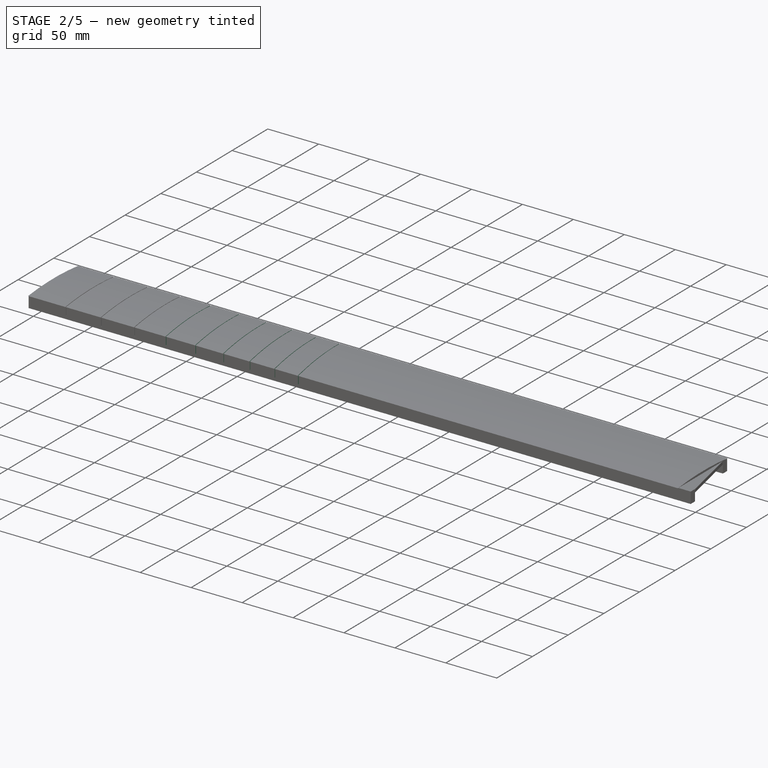
[diagram: stage 2 of 5 — iso view after this stage's code; geometry added in this stage tinted green]
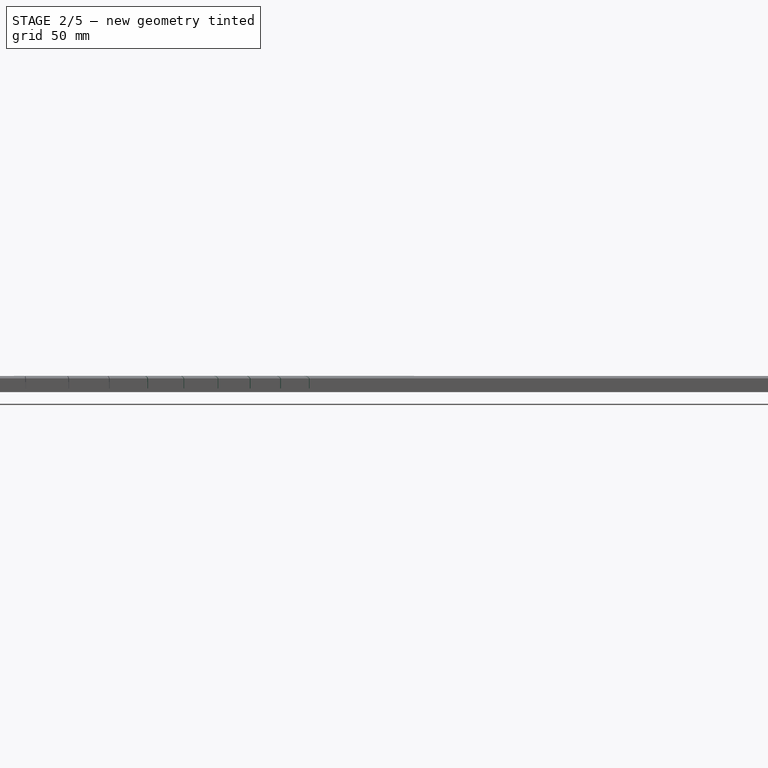
[diagram: stage 2 of 5 — front view after this stage's code; geometry added in this stage tinted green]
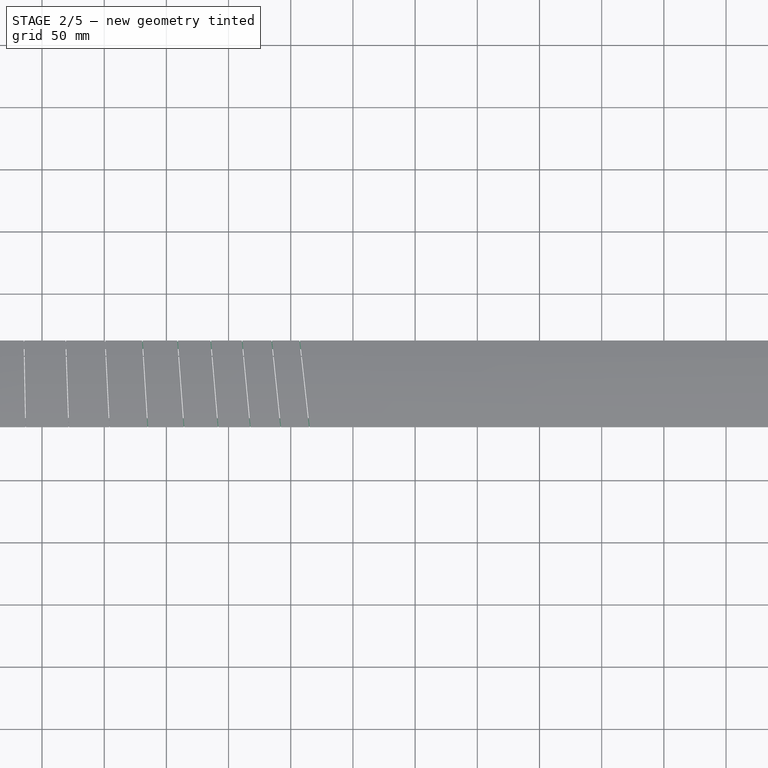
[diagram: stage 2 of 5 — top view after this stage's code; geometry added in this stage tinted green]
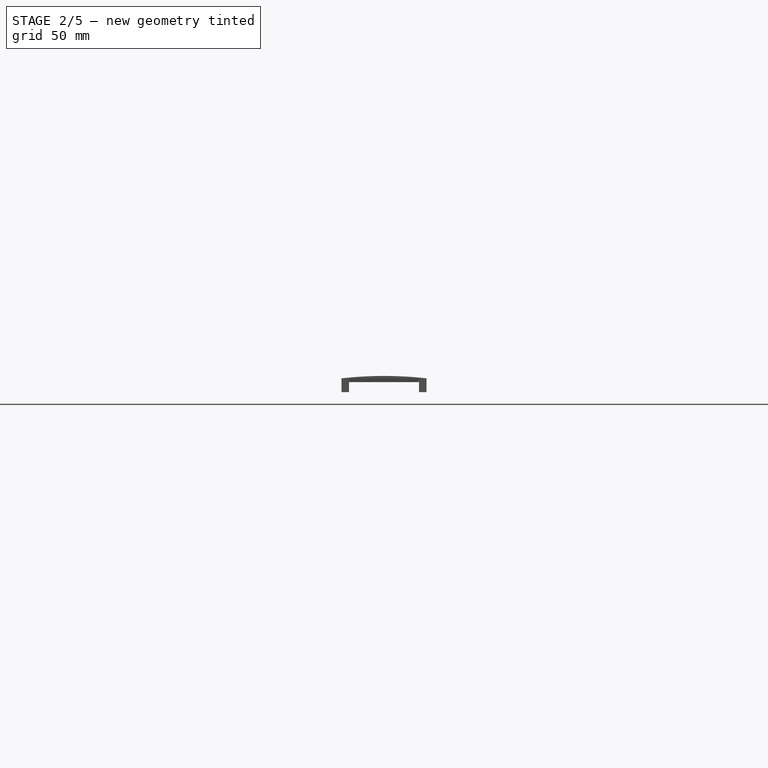
[diagram: stage 2 of 5 — right view after this stage's code; geometry added in this stage tinted green]
FEATURE [PartDesign::Plane] DatumPlane023  label="f-24"
  AttachmentOffset = pos=(0,0,0) rot=(0,1,0;1.5708rad)
  AttachmentSupport = -> [Sketch]
  Length = 72.6918
  MapMode = 7
  Placement = pos=(478.447,52.625,0) rot=(-0.645452,0.540089,0.540089;4.28794rad)
  ResizeMode = 0
  Width = 61.0989
FEATURE [Sketcher::SketchObject] Sketch026  label="slot24"
  ArcFitTolerance = 1e-06
  AttachmentSupport = -> [DatumPlane023]
  FullyConstrained = true
  MakeInternals = false
  MapMode = 5
  Placement = pos=(478.447,52.625,0) rot=(0.645452,-0.540089,-0.540089;1.99525rad)
  sketch-geometry (4):
    g0: LineSegment StartX=-19.7737 StartY=3 StartZ=0 EndX=80.2263 EndY=3 EndZ=0
    g1: LineSegment StartX=80.2263 StartY=3 StartZ=0 EndX=80.2263 EndY=23 EndZ=0
    g2: LineSegment StartX=80.2263 StartY=23 StartZ=0 EndX=-19.7737 EndY=23 EndZ=0
    g3: LineSegment StartX=-19.7737 StartY=23 StartZ=0 EndX=-19.7737 EndY=3 EndZ=0
  constraints (12):
    c: Coincident(g0,g1)
    c: Coincident(g1,g2)
    c: Coincident(g2,g3)
    c: Coincident(g3,g0)
    c: Horizontal(g0)
    c: Horizontal(g2)
    c: Vertical(g1)
    c: Vertical(g3)
    c: DistanceX(g2,g2) = 100
    c: DistanceY(g3,g3) = 20
    c: Distance(g0,g-1) = 3
    c: Distance(g-1,g0) = 20
FEATURE [Sketcher::SketchObject] Sketch027  label="slot04"
  ArcFitTolerance = 1e-06
  AttachmentSupport = -> [DatumPlane003]
  FullyConstrained = true
  MakeInternals = false
  MapMode = 5
  Placement = pos=(131.604,47.4598,0) rot=(0.601194,-0.565051,-0.565051;2.059rad)
  sketch-geometry (4):
    g0: LineSegment StartX=-19.7737 StartY=23 StartZ=0 EndX=-19.7737 EndY=3 EndZ=0
    g1: LineSegment StartX=-19.7737 StartY=3 StartZ=0 EndX=60.2263 EndY=3 EndZ=0
    g2: LineSegment StartX=60.2263 StartY=3 StartZ=0 EndX=60.2263 EndY=23 EndZ=0
    g3: LineSegment StartX=60.2263 StartY=23 StartZ=0 EndX=-19.7737 EndY=23 EndZ=0
  constraints (12):
    c: Coincident(g0,g1)
    c: Coincident(g1,g2)
    c: Coincident(g2,g3)
    c: Coincident(g3,g0)
    c: Vertical(g0)
    c: Vertical(g2)
    c: Horizontal(g1)
    c: Horizontal(g3)
    c: DistanceX(g3,g3) = 80
    c: DistanceY(g0,g0) = 20
    c: Distance(g1,g-1) = 3
    c: Distance(g-1,g0) = 20
FEATURE [PartDesign::Pocket] Pocket025  label="slot004"
  BaseFeature = -> Pocket023
  Direction = (0.998081,0.0619219,0)
  Length = 0.45
  Length2 = 5
  Midplane = true
  Profile = -> Sketch027 [Edge4,Edge1,Edge2,Edge3]
  ReferenceAxis = -> Sketch027 [N_Axis]
  Refine = true
  Suppressed = false
  Type = 0
FEATURE [PartDesign::Pocket] Pocket022  label="slot005"
  BaseFeature = -> Pocket025
  Direction = (0.997283,0.0736716,-1e-16)
  Length = 0.45
  Length2 = 5
  Midplane = true
  Profile = -> Sketch005
  ReferenceAxis = -> Sketch005 [N_Axis]
  Refine = true
  Suppressed = false
  Type = 0
FEATURE [PartDesign::Pocket] Pocket021  label="slot006"
  BaseFeature = -> Pocket022
  Direction = (0.996441,0.0842961,2e-16)
  Length = 0.45
  Length2 = 5
  Midplane = true
  Profile = -> Sketch006
  ReferenceAxis = -> Sketch006 [N_Axis]
  Refine = true
  Suppressed = false
  Type = 0
FEATURE [PartDesign::Pocket] Pocket020  label="slot007"
  BaseFeature = -> Pocket021
  Direction = (0.995579,0.0939312,2e-16)
  Length = 0.45
  Length2 = 5
  Midplane = true
  Profile = -> Sketch007
  ReferenceAxis = -> Sketch007 [N_Axis]
  Refine = true
  Suppressed = false
  Type = 0
FEATURE [PartDesign::Pocket] Pocket019  label="slot008"
  BaseFeature = -> Pocket020
  Direction = (0.994713,0.102693,1e-16)
  Length = 0.45
  Length2 = 5
  Midplane = true
  Profile = -> Sketch008
  ReferenceAxis = -> Sketch008 [N_Axis]
  Refine = true
  Suppressed = false
  Type = 0
FEATURE [PartDesign::Pocket] Pocket018  label="slot009"
  BaseFeature = -> Pocket019
  Direction = (0.993856,0.110679,1e-16)
  Length = 0.45
  Length2 = 5
  Midplane = true
  Profile = -> Sketch009
  ReferenceAxis = -> Sketch009 [N_Axis]
  Refine = true
  Suppressed = false
  Type = 0
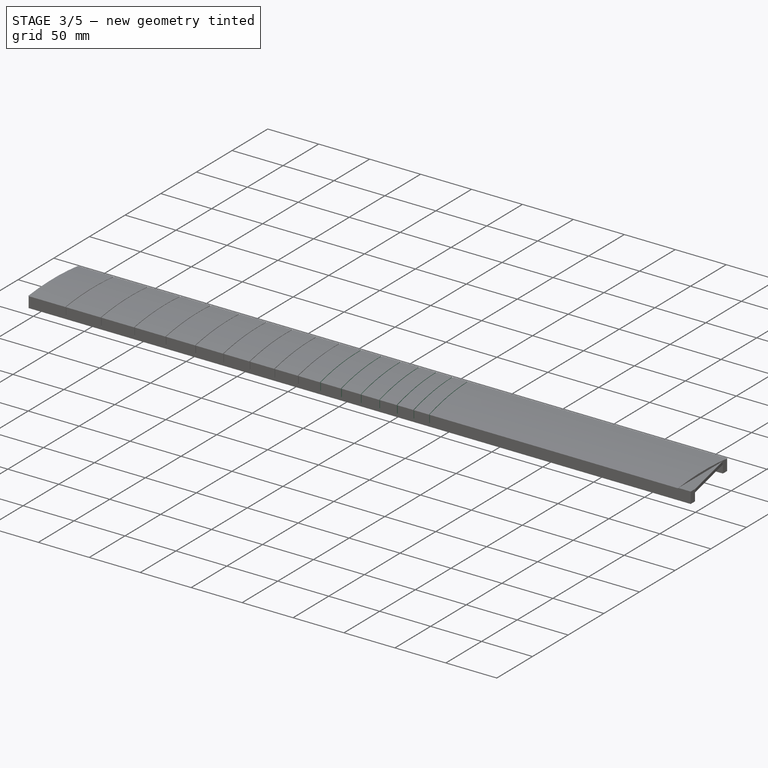
[diagram: stage 3 of 5 — iso view after this stage's code; geometry added in this stage tinted green]
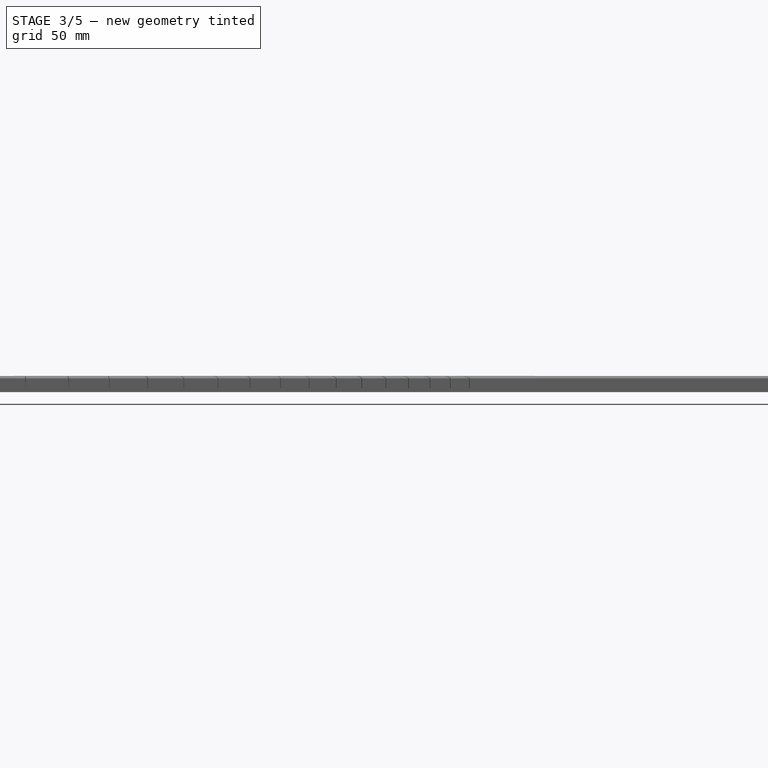
[diagram: stage 3 of 5 — front view after this stage's code; geometry added in this stage tinted green]
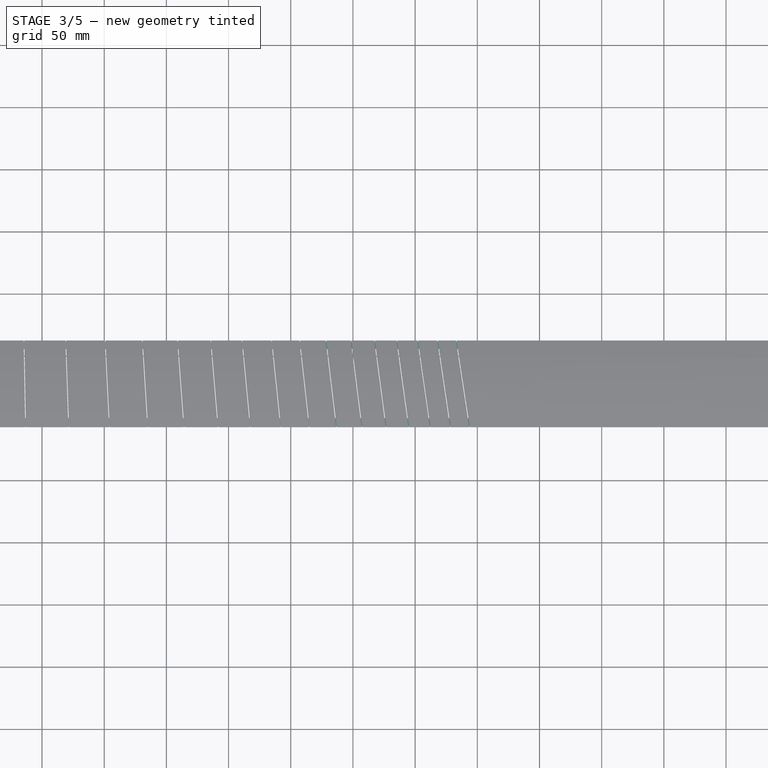
[diagram: stage 3 of 5 — top view after this stage's code; geometry added in this stage tinted green]
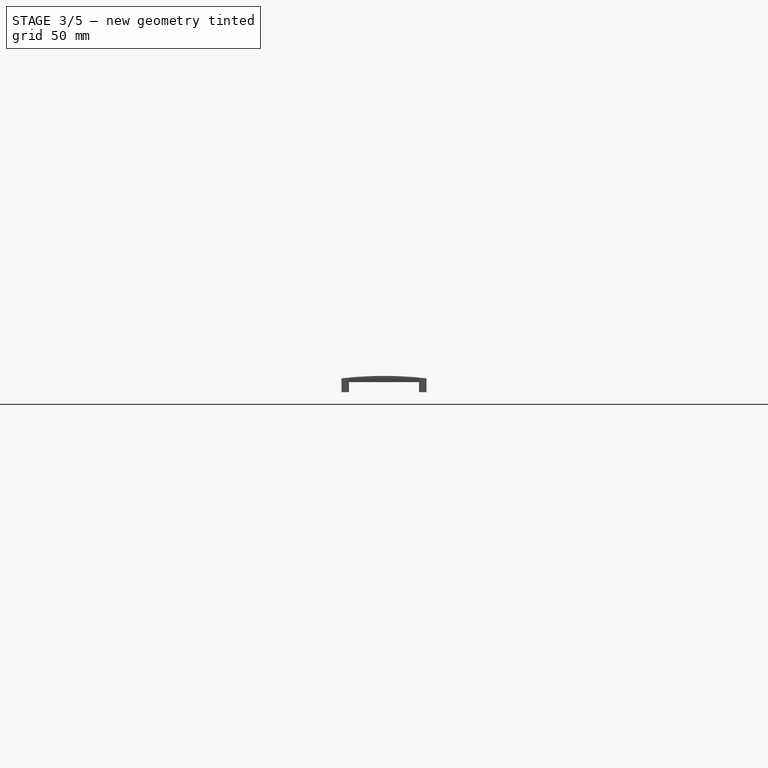
[diagram: stage 3 of 5 — right view after this stage's code; geometry added in this stage tinted green]
FEATURE [PartDesign::Pocket] Pocket017  label="slot010"
  BaseFeature = -> Pocket018
  Direction = (0.993016,0.117977,1e-16)
  Length = 0.45
  Length2 = 5
  Midplane = true
  Profile = -> Sketch010
  ReferenceAxis = -> Sketch010 [N_Axis]
  Refine = true
  Suppressed = false
  Type = 0
FEATURE [PartDesign::Pocket] Pocket016  label="slot011"
  BaseFeature = -> Pocket017
  Direction = (0.9922,0.124659,-1e-16)
  Length = 0.45
  Length2 = 5
  Midplane = true
  Profile = -> Sketch011
  ReferenceAxis = -> Sketch011 [N_Axis]
  Refine = true
  Suppressed = false
  Type = 0
FEATURE [PartDesign::Pocket] Pocket015  label="slot012"
  BaseFeature = -> Pocket016
  Direction = (0.99141,0.13079,1e-16)
  Length = 0.45
  Length2 = 5
  Midplane = true
  Profile = -> Sketch012
  ReferenceAxis = -> Sketch012 [N_Axis]
  Refine = true
  Suppressed = false
  Type = 0
FEATURE [PartDesign::Pocket] Pocket014  label="slot013"
  BaseFeature = -> Pocket015
  Direction = (0.99065,0.136425,0)
  Length = 0.45
  Length2 = 5
  Midplane = true
  Profile = -> Sketch013
  ReferenceAxis = -> Sketch013 [N_Axis]
  Refine = true
  Suppressed = false
  Type = 0
FEATURE [PartDesign::Pocket] Pocket013  label="slot014"
  BaseFeature = -> Pocket014
  Direction = (0.989922,0.141613,1e-16)
  Length = 0.45
  Length2 = 5
  Midplane = true
  Profile = -> Sketch014
  ReferenceAxis = -> Sketch014 [N_Axis]
  Refine = true
  Suppressed = false
  Type = 0
FEATURE [PartDesign::Pocket] Pocket012  label="slot015"
  BaseFeature = -> Pocket013
  Direction = (0.989226,0.146398,0)
  Length = 0.45
  Length2 = 5
  Midplane = true
  Profile = -> Sketch015
  ReferenceAxis = -> Sketch015 [N_Axis]
  Refine = true
  Suppressed = false
  Type = 0
FEATURE [PartDesign::Pocket] Pocket011  label="slot016"
  BaseFeature = -> Pocket012
  Direction = (0.988562,0.150817,3e-16)
  Length = 0.45
  Length2 = 5
  Midplane = true
  Profile = -> Sketch016
  ReferenceAxis = -> Sketch016 [N_Axis]
  Refine = true
  Suppressed = false
  Type = 0
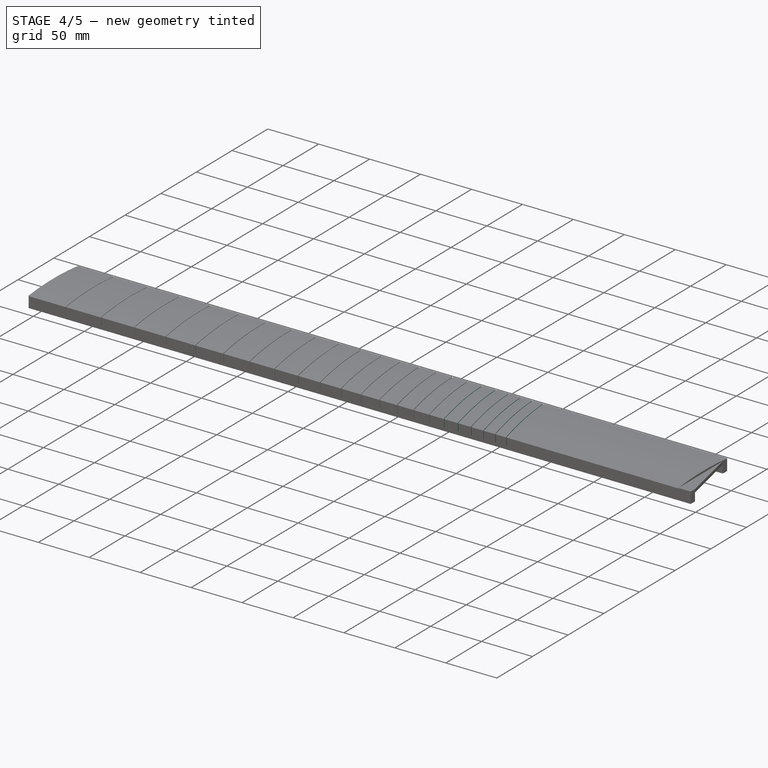
[diagram: stage 4 of 5 — iso view after this stage's code; geometry added in this stage tinted green]
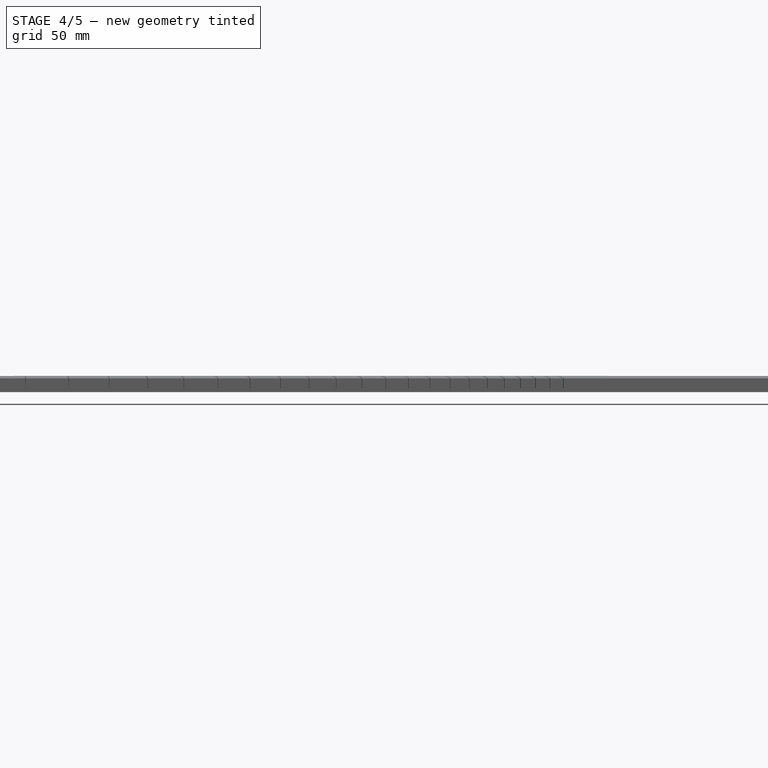
[diagram: stage 4 of 5 — front view after this stage's code; geometry added in this stage tinted green]
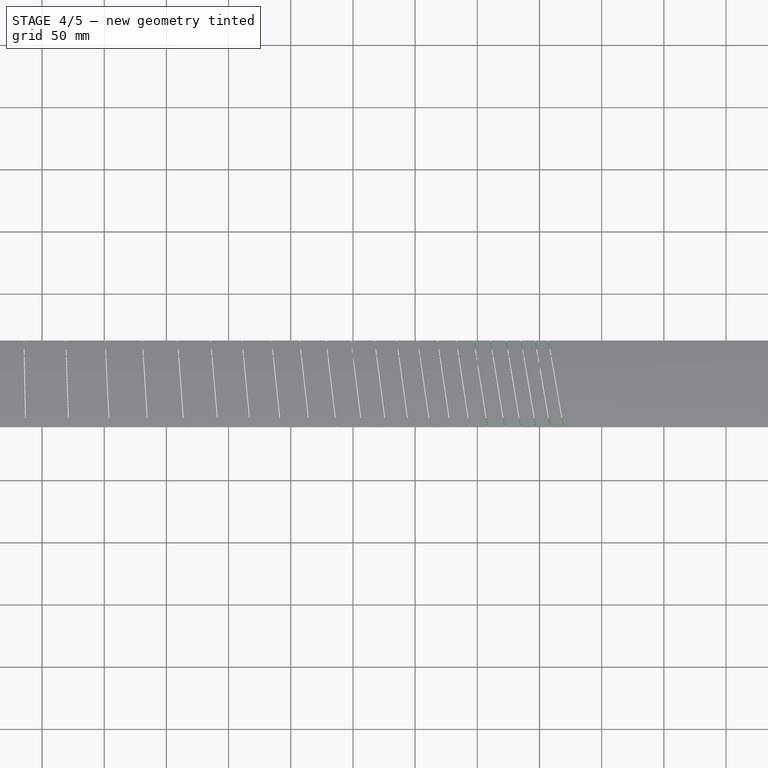
[diagram: stage 4 of 5 — top view after this stage's code; geometry added in this stage tinted green]
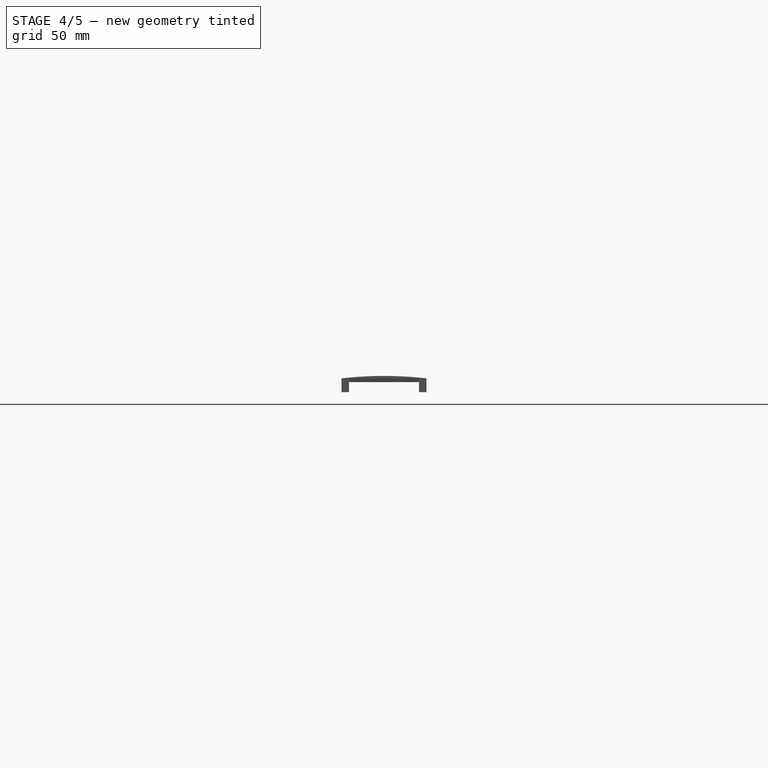
[diagram: stage 4 of 5 — right view after this stage's code; geometry added in this stage tinted green]
FEATURE [PartDesign::Pocket] Pocket010  label="slot017"
  BaseFeature = -> Pocket011
  Direction = (0.98793,0.154904,2e-16)
  Length = 0.45
  Length2 = 5
  Midplane = true
  Profile = -> Sketch017
  ReferenceAxis = -> Sketch017 [N_Axis]
  Refine = true
  Suppressed = false
  Type = 0
FEATURE [PartDesign::Pocket] Pocket009  label="slot018"
  BaseFeature = -> Pocket010
  Direction = (0.987329,0.158688,2e-16)
  Length = 0.45
  Length2 = 5
  Midplane = true
  Profile = -> Sketch018
  ReferenceAxis = -> Sketch018 [N_Axis]
  Refine = true
  Suppressed = false
  Type = 0
FEATURE [PartDesign::Pocket] Pocket008  label="slot019"
  BaseFeature = -> Pocket009
  Direction = (0.986758,0.162197,1e-16)
  Length = 0.45
  Length2 = 5
  Midplane = true
  Profile = -> Sketch019
  ReferenceAxis = -> Sketch019 [N_Axis]
  Refine = true
  Suppressed = false
  Type = 0
FEATURE [PartDesign::Pocket] Pocket007  label="slot020"
  BaseFeature = -> Pocket008
  Direction = (0.986218,0.165454,0)
  Length = 0.45
  Length2 = 5
  Midplane = true
  Profile = -> Sketch020
  ReferenceAxis = -> Sketch020 [N_Axis]
  Refine = true
  Suppressed = false
  Type = 0
FEATURE [PartDesign::Pocket] Pocket006  label="slot021"
  BaseFeature = -> Pocket007
  Direction = (0.985705,0.16848,-1e-16)
  Length = 0.45
  Length2 = 5
  Midplane = true
  Profile = -> Sketch021
  ReferenceAxis = -> Sketch021 [N_Axis]
  Refine = true
  Suppressed = false
  Type = 0
FEATURE [PartDesign::Pocket] Pocket005  label="slot022"
  BaseFeature = -> Pocket006
  Direction = (0.98522,0.171294,0)
  Length = 0.45
  Length2 = 5
  Midplane = true
  Profile = -> Sketch022
  ReferenceAxis = -> Sketch022 [N_Axis]
  Refine = true
  Suppressed = false
  Type = 0
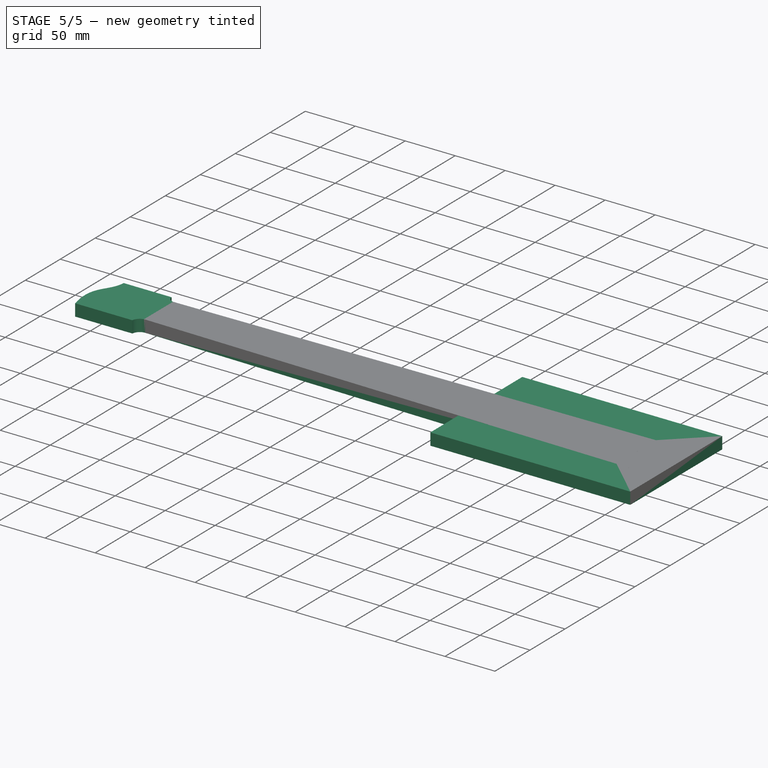
[diagram: stage 5 of 5 — iso view after this stage's code; geometry added in this stage tinted green]
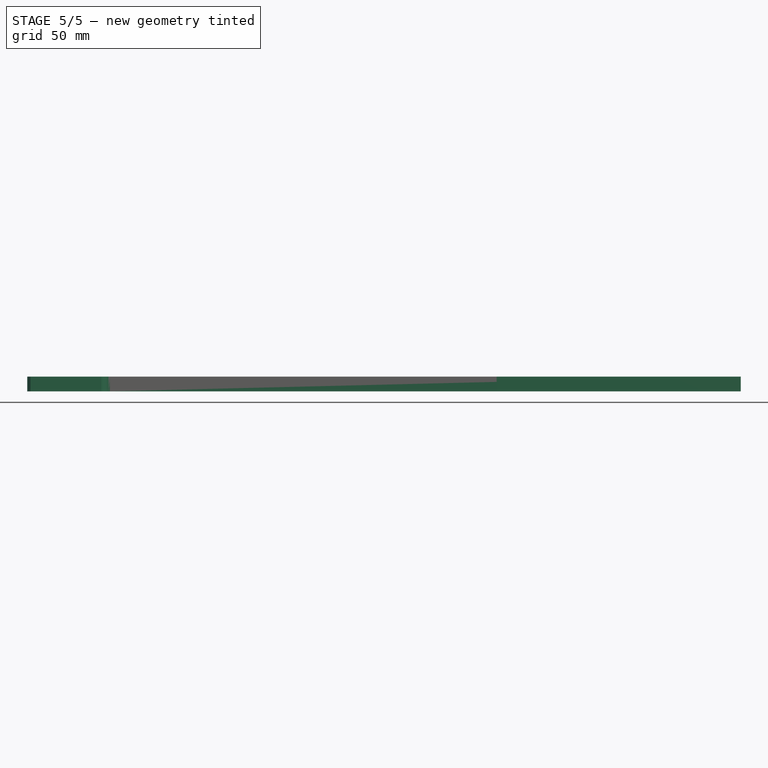
[diagram: stage 5 of 5 — front view after this stage's code; geometry added in this stage tinted green]
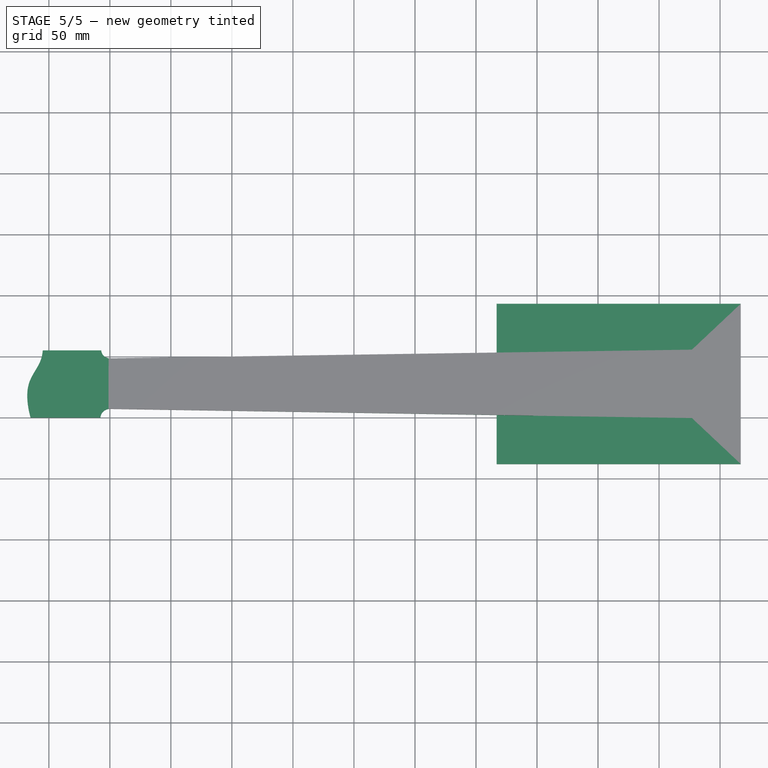
[diagram: stage 5 of 5 — top view after this stage's code; geometry added in this stage tinted green]
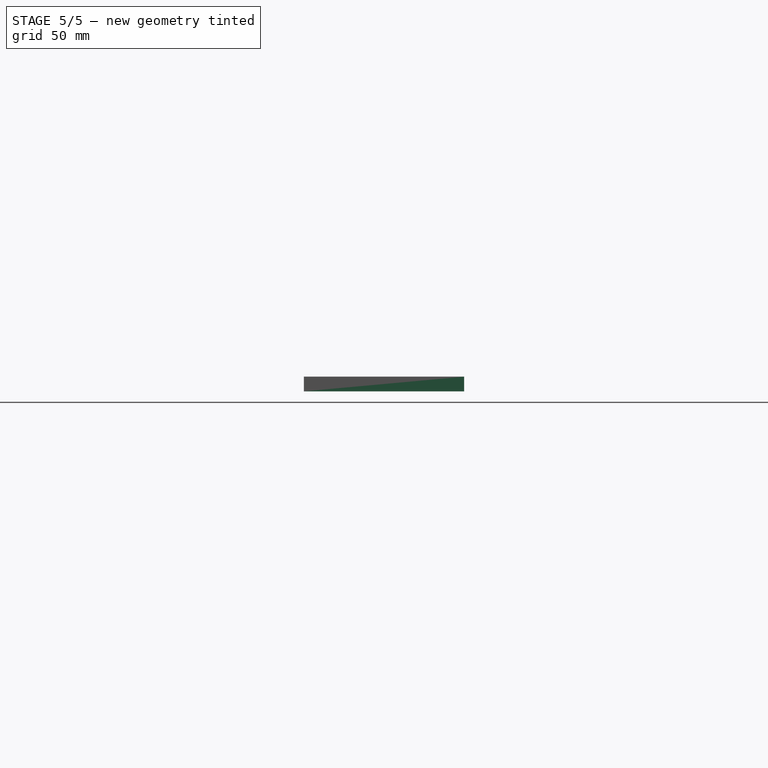
[diagram: stage 5 of 5 — right view after this stage's code; geometry added in this stage tinted green]
FEATURE [PartDesign::Pocket] Pocket004  label="slot023"
  BaseFeature = -> Pocket005
  Direction = (0.984761,0.173914,-2e-16)
  Length = 0.45
  Length2 = 5
  Midplane = true
  Profile = -> Sketch023
  ReferenceAxis = -> Sketch023 [N_Axis]
  Refine = true
  Suppressed = false
  Type = 0
FEATURE [PartDesign::Pocket] Pocket024  label="slot024"
  BaseFeature = -> Pocket004
  Direction = (0.984327,0.176354,0)
  Length = 0.45
  Length2 = 5
  Midplane = true
  Profile = -> Sketch026
  ReferenceAxis = -> Sketch026 [N_Axis]
  Refine = true
  Suppressed = false
  Type = 0
FEATURE [PartDesign::Body] Body  label="fret-slot-guide"
  AllowCompound = false
  Group = -> [Sketch,DatumPlane,DatumPlane001,DatumPlane002,DatumPlane003,DatumPlane004,DatumPlane005,Sketch001,Sketch002,DatumPlane006,DatumPlane007,DatumPlane008,DatumPlane009,DatumPlane010,DatumPlane011,DatumPlane012,DatumPlane013,DatumPlane014,DatumPlane015,DatumPlane016,DatumPlane017,DatumPlane018,DatumPlane019,DatumPlane020,DatumPlane021,DatumPlane022,DatumPlane023,Sketch003,Sketch005,Sketch006,Sketch007,+46 more]
  Origin = -> Origin
  Tip = -> Pocket024
FEATURE [PartDesign::SubShapeBinder] Binder002
  BindCopyOnChange = 0
  BindMode = 0
  ClaimChildren = false
  Context = -> Body003 [Binder002.]
  Fuse = false
  MakeFace = true
  OffsetFill = false
  OffsetIntersection = false
  OffsetJoinType = 0
  OffsetOpenResult = false
  PartialLoad = false
  Refine = true
  Relative = true
  Support = -> [Body[Sketch.Edge12,Sketch.Edge11,Sketch.Edge10,Sketch.Edge1,Sketch.Edge3,Sketch.Edge4,Sketch.Edge22,Sketch.Edge19]]
  _Version = 2
FEATURE [Sketcher::SketchObject] Sketch030
  ArcFitTolerance = 1e-06
  AttachmentSupport = -> [XY_Plane003]
  ExternalGeometry = -> [Binder002]
  FullyConstrained = false
  MakeInternals = false
  MapMode = 5
  sketch-geometry (21):
    g0: LineSegment StartX=-55 StartY=55 StartZ=0 EndX=-7.09753 EndY=55 EndZ=0
    g1: LineSegment StartX=-7.75497 StartY=0 StartZ=0 EndX=-65 EndY=0 EndZ=0
    g2-g5: Circle [constr] x4 (B-spline internal-alignment scaffolding for g6; pole/knot coordinates omitted)
    g6: BSplineCurve PolesCount=4 KnotsCount=2 Degree=3 IsPeriodic=0
    g7: GeomPoint [constr] X=-65 Y=0 Z=0
    g8: GeomPoint [constr] X=-55 Y=55 Z=0
    g9: LineSegment StartX=8.10939e-05 StartY=48.5 StartZ=0 EndX=478.447 EndY=55.625 EndZ=0
    g10: LineSegment StartX=1.51353e-07 StartY=7.15509 StartZ=0 EndX=487.45 EndY=-0.625028 EndZ=0
    g11: LineSegment StartX=487.45 StartY=-0.625028 StartZ=0 EndX=491.893 EndY=-0.695945 EndZ=0
    g12: LineSegment StartX=478.447 StartY=55.625 StartZ=0 EndX=481.724 EndY=55.6738 EndZ=0
    g13: Circle [constr] CenterX=491.893 CenterY=-0.695945 CenterZ=0 NormalX=0 NormalY=0 NormalZ=1 AngleXU=0 Radius=1
    g14: Circle [constr] CenterX=499.844 CenterY=29.8124 CenterZ=0 NormalX=0 NormalY=0 NormalZ=1 AngleXU=0 Radius=1
    g15: Circle [constr] CenterX=481.724 CenterY=55.6738 CenterZ=0 NormalX=0 NormalY=0 NormalZ=1 AngleXU=0 Radius=1
    g16: BSplineCurve PolesCount=3 KnotsCount=2 Degree=2 IsPeriodic=0
    g17: GeomPoint [constr] X=491.893 Y=-0.695945 Z=0
    g18: GeomPoint [constr] X=481.724 Y=55.6738 Z=0
    g19: ArcOfCircle CenterX=0 CenterY=55.625 CenterZ=0 NormalX=0 NormalY=0 NormalZ=1 AngleXU=0 Radius=7.125 StartAngle=3.22942 EndAngle=4.7124
    g20: ArcOfCircle CenterX=0 CenterY=-0.625028 CenterZ=0 NormalX=0 NormalY=0 NormalZ=1 AngleXU=0 Radius=7.78012 StartAngle=1.5708 EndAngle=3.06117
  constraints (35):
    c: Coincident(g0,g-6)
    c: Coincident(g0,g-4)
    c: Coincident(g1,g-8)
    c: Horizontal(g1)
    c: Weight(g2) = 1
    c: Equal(g2,g3)
    c: Equal(g2,g4)
    c: Equal(g2,g5)
    c: InternalAlignment(g2-g5 -> g6) x4
    c: InternalAlignment(g7,g6)
    c: InternalAlignment(g8,g6)
    c: Coincident(g2,g1)
    c: Coincident(g5,g0)
    c: Coincident(g9,g-10)
    c: Coincident(g10,g-12)
    c: Coincident(g11,g10)
    c: Coincident(g12,g9)
    c: Parallel(g9,g12)
    c: Parallel(g10,g11)
    c: Weight(g13) = 1
    c: Equal(g13,g14)
    c: Equal(g13,g15)
    c: InternalAlignment(g13,g16)
    c: InternalAlignment(g14,g16)
    c: InternalAlignment(g15,g16)
    c: InternalAlignment(g17,g16)
    c: InternalAlignment(g18,g16)
    c: Coincident(g13,g11)
    c: Coincident(g15,g12)
    c: Coincident(g19,g-4)
    c: Coincident(g19,g9)
    c: Coincident(g19,g0)
    c: Coincident(g20,g-7)
    c: Coincident(g20,g10)
    c: Coincident(g20,g1)
FEATURE [PartDesign::Pad] Pad004
  Direction = (0,0,1)
  Length = 12
  Length2 = 10
  Profile = -> Sketch030 [Edge4,Edge3,Edge2,Edge1,Edge10,Edge5,Edge6,Edge7,Edge8,Edge9]
  ReferenceAxis = -> Sketch030 [N_Axis]
  Refine = true
  Suppressed = false
  Type = 0
FEATURE [PartDesign::Body] Body003  label="fretboard-full"
  AllowCompound = false
  Group = -> [Sketch030,Binder002,Pad004]
  Origin = -> Origin003
  Tip = -> Pad004
FEATURE [PartDesign::SubShapeBinder] Binder003
  BindCopyOnChange = 0
  BindMode = 0
  ClaimChildren = false
  Context = -> Body004 [Binder003.]
  Fuse = false
  MakeFace = true
  OffsetFill = false
  OffsetIntersection = false
  OffsetJoinType = 0
  OffsetOpenResult = false
  PartialLoad = false
  Refine = true
  Relative = true
  Support = -> [Body[Sketch.Edge12,Sketch.Edge11,Sketch.Edge10,Sketch.Edge3,Sketch.Edge1,Sketch.Edge22,Sketch.Edge4,Sketch.Edge59]]
  _Version = 2
FEATURE [PartDesign::SubShapeBinder] Binder004
  BindCopyOnChange = 0
  BindMode = 0
  ClaimChildren = false
  Context = -> Body005 [Binder004.]
  Fuse = false
  MakeFace = true
  OffsetFill = false
  OffsetIntersection = false
  OffsetJoinType = 0
  OffsetOpenResult = false
  PartialLoad = false
  Refine = true
  Relative = true
  Support = -> [Body[Sketch.Edge12,Sketch.Edge11,Sketch.Edge10,Sketch.Edge3,Sketch.Edge1,Sketch.Edge22,Sketch.Edge4,Sketch.Edge59]]
  _Version = 2
FEATURE [Sketcher::SketchObject] Sketch031
  ArcFitTolerance = 1e-06
  AttachmentSupport = -> [XY_Plane004]
  ExternalGeometry = -> [Binder003]
  FullyConstrained = true
  MakeInternals = false
  MapMode = 5
  sketch-geometry (4):
    g0: LineSegment StartX=476.947 StartY=55.6027 StartZ=0 EndX=476.947 EndY=-0.471508 EndZ=0
    g1: LineSegment StartX=346.947 StartY=53.6667 StartZ=0 EndX=346.947 EndY=1.4287 EndZ=0
    g2: LineSegment StartX=346.947 StartY=53.6667 StartZ=0 EndX=476.947 EndY=55.6027 EndZ=0
    g3: LineSegment StartX=346.947 StartY=1.4287 StartZ=0 EndX=476.947 EndY=-0.471508 EndZ=0
  constraints (10):
    c: Coincident(g0,g-4)
    c: Coincident(g0,g-4)
    c: PointOnObject(g1,g-3)
    c: PointOnObject(g1,g-5)
    c: Vertical(g1)
    c: Distance(g0,g1) = 130
    c: Coincident(g2,g1)
    c: Coincident(g2,g0)
    c: Coincident(g3,g0)
    c: Coincident(g1,g3)
FEATURE [PartDesign::Pad] Pad005
  Direction = (0,0,1)
  Length = 12
  Length2 = 10
  Profile = -> Sketch031 [Edge3,Edge4,Edge1,Edge2]
  ReferenceAxis = -> Sketch031 [N_Axis]
  Refine = true
  Suppressed = false
  Type = 0
FEATURE [Sketcher::SketchObject] Sketch032
  ArcFitTolerance = 1e-06
  AttachmentSupport = -> [XY_Plane005]
  ExternalGeometry = -> [Binder004]
  FullyConstrained = true
  MakeInternals = false
  MapMode = 5
  sketch-geometry (9):
    g0: LineSegment StartX=316.947 StartY=93.22 StartZ=0 EndX=516.947 EndY=93.22 EndZ=0
    g1: LineSegment StartX=516.947 StartY=93.22 StartZ=0 EndX=516.947 EndY=-38.1328 EndZ=0
    g2: LineSegment StartX=516.947 StartY=-38.1328 StartZ=0 EndX=316.947 EndY=-38.1328 EndZ=0
    g3: LineSegment StartX=316.947 StartY=-38.1328 StartZ=0 EndX=316.947 EndY=1.8672 EndZ=0
    g4: LineSegment StartX=316.947 StartY=1.8672 StartZ=0 EndX=476.947 EndY=-0.471508 EndZ=0
    g5: LineSegment StartX=476.947 StartY=55.6027 StartZ=0 EndX=476.947 EndY=55.6027 EndZ=0
    g6: LineSegment StartX=476.947 StartY=55.6027 StartZ=0 EndX=476.947 EndY=-0.471508 EndZ=0
    g7: LineSegment StartX=316.947 StartY=53.22 StartZ=0 EndX=476.947 EndY=55.6027 EndZ=0
    g8: LineSegment StartX=316.947 StartY=93.22 StartZ=0 EndX=316.947 EndY=53.22 EndZ=0
  constraints (24):
    c: Horizontal(g0)
    c: Coincident(g0,g1)
    c: Vertical(g1)
    c: Coincident(g1,g2)
    c: Horizontal(g2)
    c: Coincident(g2,g3)
    c: PointOnObject(g3,g-5)
    c: Vertical(g3)
    c: Coincident(g3,g4)
    c: Coincident(g5,g-4)
    c: Horizontal(g5)
    c: Coincident(g6,g4)
    c: Coincident(g4,g-4)
    c: Coincident(g7,g5)
    c: Tangent(g7,g-3) = -1.5708
    c: Coincident(g8,g0)
    c: Coincident(g8,g7)
    c: Vertical(g8)
    c: Equal(g0,g2)
    c: Distance(g1,g6) = 40
    c: DistanceX(g0,g0) = 200
    c: Equal(g3,g8)
    c: DistanceY(g8,g8) = 40
    c: Coincident(g6,g5)
FEATURE [PartDesign::Pad] Pad006
  Direction = (0,0,1)
  Length = 12
  Length2 = 10
  Profile = -> Sketch032
  ReferenceAxis = -> Sketch032 [N_Axis]
  Refine = true
  Suppressed = false
  Type = 0
FEATURE [PartDesign::Body] Body005  label="fretboard-mount2"
  AllowCompound = false
  Group = -> [Binder004,Sketch032,Pad006]
  Origin = -> Origin005
  Tip = -> Pad006
FEATURE [Spreadsheet::Sheet] Spreadsheet
  cells = A1='1번줄 길이; B1(string_1_length)=638; A2='6번줄 길이; B2(string_6_length)=650; A3='넛 너비; B3(nut_width)=42; A4='브릿지 너비; B4(bridge_width)=55; A5='String offset; B5(string_offset)=3; A7='프렛; B7='1번줄; C7='6번줄; A8=1; B8(string_1_distance_1)=35.808188; C8(string_6_distance_1)=36.48169623; A9=2; B9(string_1_distance_2)=69.60661686; C9(string_6_distance_2)=70.91612985; A10=3; B10(string_1_distance_3)=101.5080857; C10(string_6_distance_3)=103.4178905; A11=4; B11(string_1_distance_4)=131.6190627; C11(string_6_distance_4)=134.0954518; A12=5; B12(string_1_distance_5)=160.0400404; C12(string_6_distance_5)=163.051199; A13=6; B13(string_1_distance_6)=186.8658713; C13(string_6_distance_6)=190.381771; A14=7; B14(string_1_distance_7)=212.186084; C14(string_6_distance_7)=216.1783826; A15=8; B15(string_1_distance_8)=236.0851823; C15(string_6_distance_8)=240.5271292; A16=9; B16(string_1_distance_9)=258.6429274; C16(string_6_distance_9)=263.5092738; A17=10; B17(string_1_distance_10)=279.9346035; C17(string_6_distance_10)=285.2015186; A18=11; B18(string_1_distance_11)=300.0312697; C18(string_6_distance_11)=305.6762608; A19=12; B19(string_1_distance_12)=318.9999967; C19(string_6_distance_12)=325.0018341; A20=13; B20(string_1_distance_13)=336.9040909; C20(string_6_distance_13)=343.2427369; A21=14; B21(string_1_distance_14)=353.8033055; C21(string_6_distance_14)=360.4598477; A22=15; B22(string_1_distance_15)=369.7540401; C22(string_6_distance_15)=376.710628; A23=16; B23(string_1_distance_16)=384.8095288; C23(string_6_distance_16)=392.0493142; A24=17; B24(string_1_distance_17)=399.0200178; C24(string_6_distance_17)=406.5270987; A25=18; B25(string_1_distance_18)=412.4329333; C25(string_6_distance_18)=420.1923005; A26=19; B26(string_1_distance_19)=425.0930398; C26(string_6_distance_19)=433.0905269; A27=20; B27(string_1_distance_20)=437.0425891; C27(string_6_distance_20)=445.2648252; A28=21; B28(string_1_distance_21)=448.3214618; C28(string_6_distance_21)=456.7558268; A29=22; B29(string_1_distance_22)=458.9672999; C29(string_6_distance_22)=467.6018824; A30=23; B30(string_1_distance_23)=469.0156331; C30(string_6_distance_23)=477.8391905; A31=24; B31(string_1_distance_24)=478.4999967; C31(string_6_distance_24)=487.5019176
FEATURE [PartDesign::Fillet] Fillet
  Base = -> Pad005 [Edge2,?Edge8]
  BaseFeature = -> Pad005
  Radius = 6.35
  Refine = true
  SupportTransform = false
  Suppressed = false
  UseAllEdges = false
FEATURE [PartDesign::Body] Body004  label="fretboard-mount"
  AllowCompound = false
  Group = -> [Binder003,Sketch031,Pad005,Fillet]
  Origin = -> Origin004
  Tip = -> Fillet
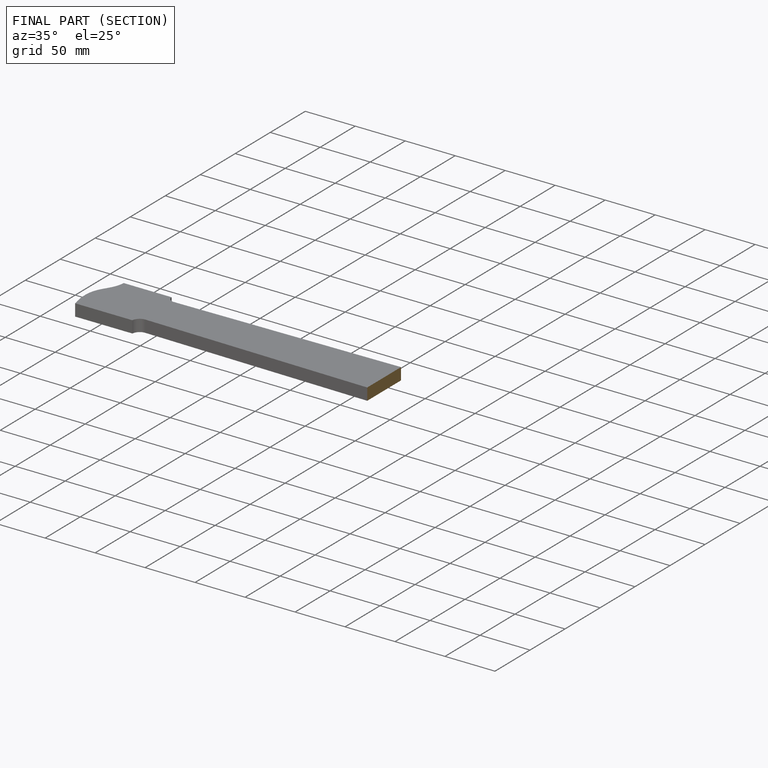
[diagram: finished part — half-section view (interior)]
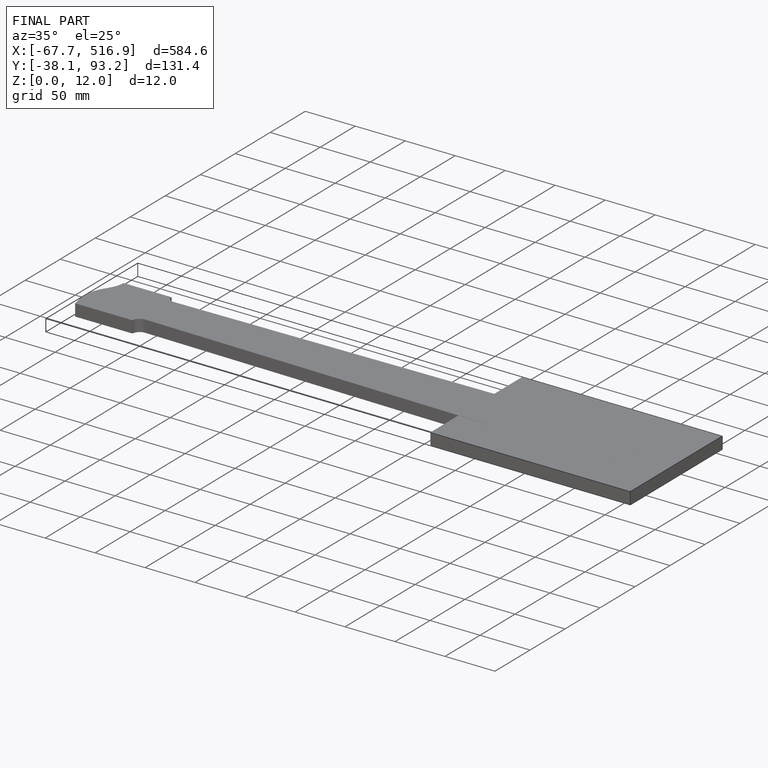
[diagram: finished part — iso view with bounding-box wireframe]
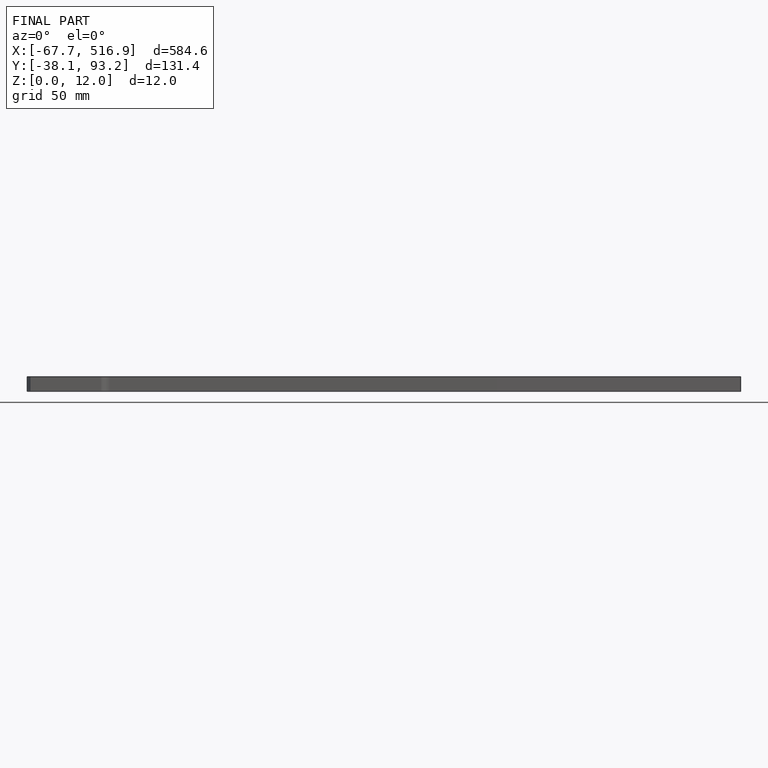
[diagram: finished part — front view with bounding-box wireframe]
